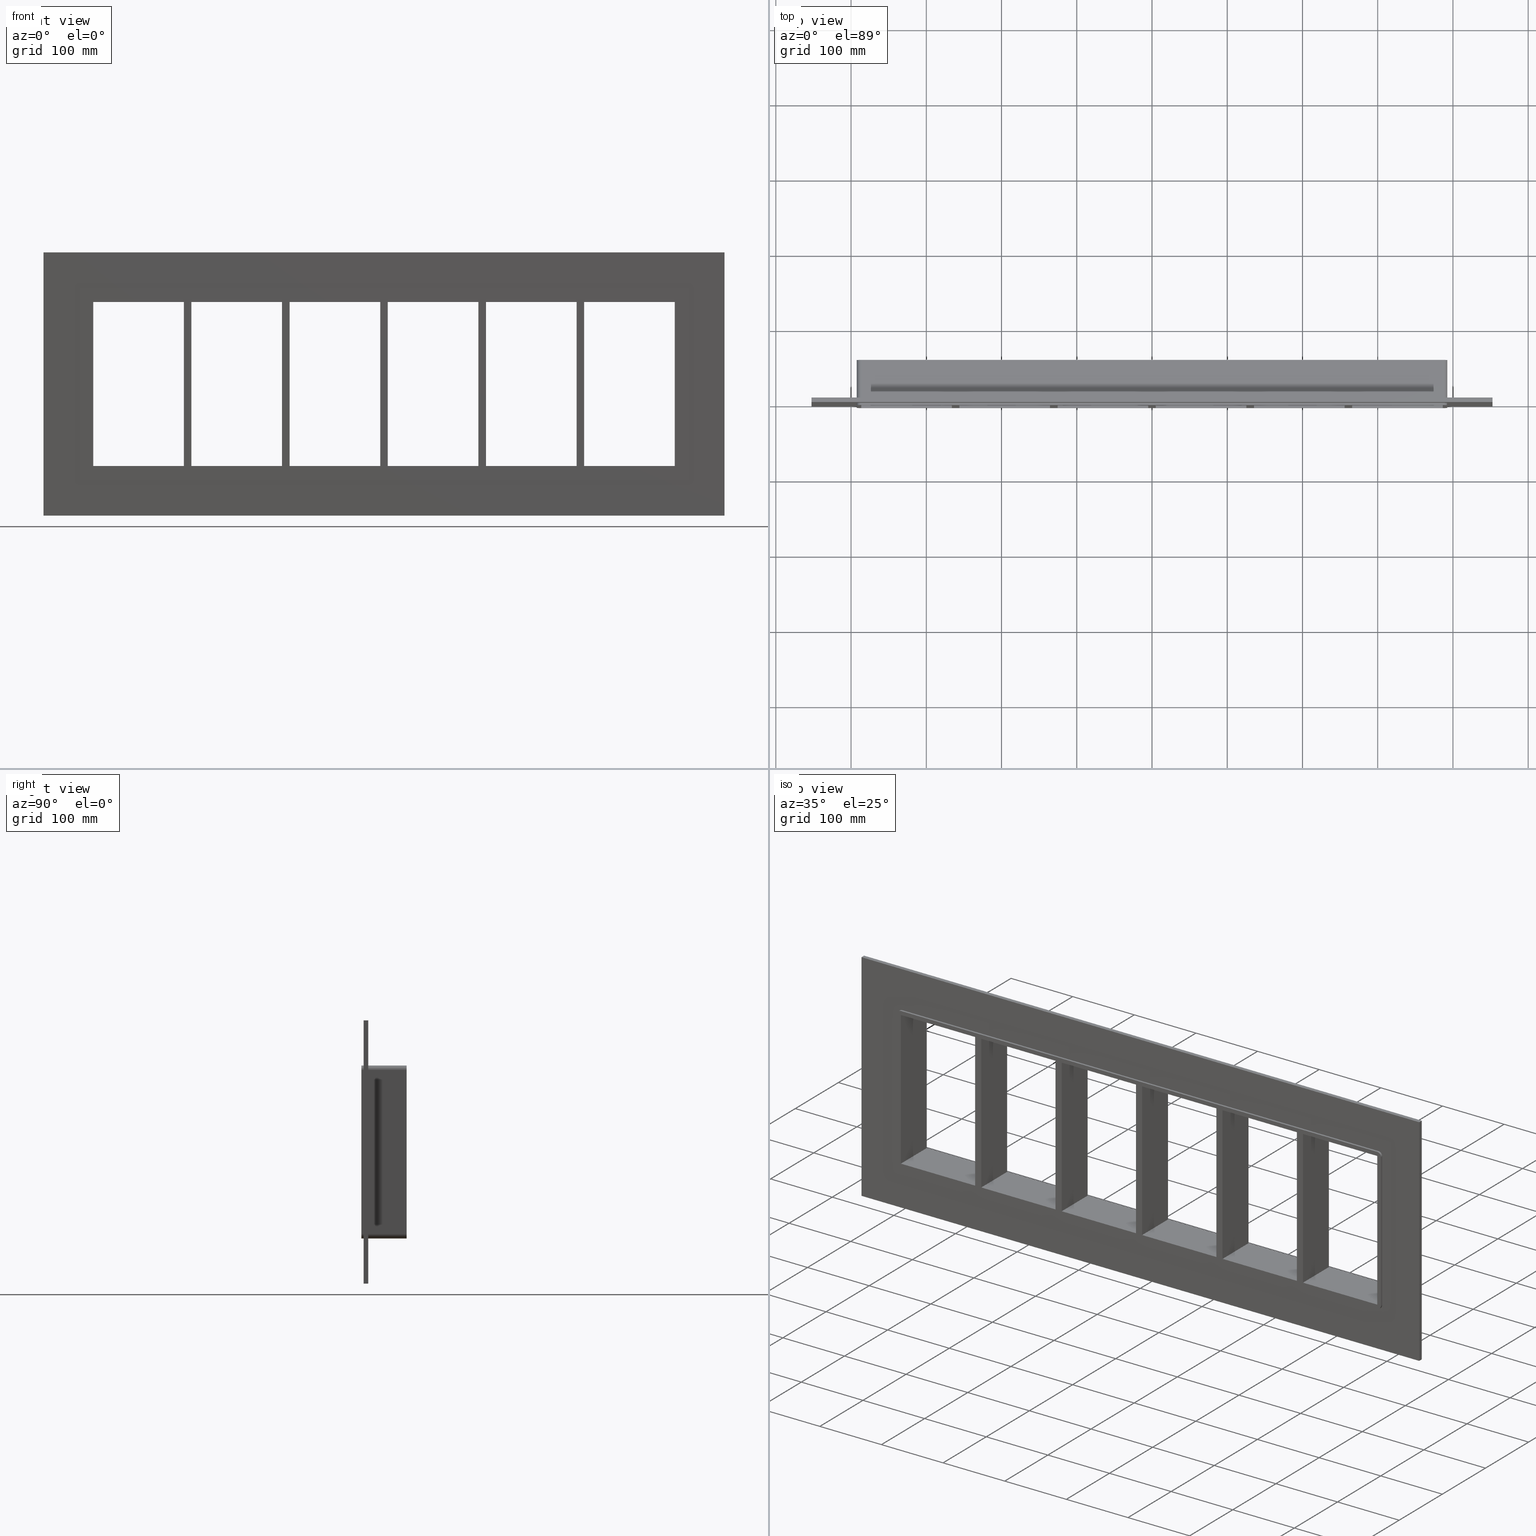
[diagram: canonical four-view strip — front | top / right | iso, engineering-drawing reading convention]
A machine part, canonical four-view strip (front | top / right | iso — engineering-drawing reading convention). The complete STEP part file that produces these views, byte-faithful:
ISO-10303-21;
HEADER;
/****************************************************************
 * Generated by software with PDElib inside                    *
 * PDElib Version v51a, created Wed 11/30/2011                  *
 * ITI Transcendata (http://www.transcendata.com/)              *
 ****************************************************************/
FILE_DESCRIPTION((''),'2;1');
FILE_NAME('C:\\RoxtecConfigurator\\CreatedFiles\\STEP\\G6X6.stp','2013-06-28T12:55:43',(''),(''),'Autodesk Inventor 2013','Autodesk Inventor 2013','');
FILE_SCHEMA(('AUTOMOTIVE_DESIGN { 1 0 10303 214 1 1 1 1 }'));
ENDSEC;
DATA;
#5=APPLICATION_CONTEXT('automotive design');
#6=APPLICATION_PROTOCOL_DEFINITION('International Standard','automotive_design',2001,#5);
#7=PRODUCT_CONTEXT('',#5,'mechanical');
#8=PRODUCT('roxtec S_SF_G','roxtec S_SF_G',$,(#7));
#9=PRODUCT_RELATED_PRODUCT_CATEGORY('part',$,(#8));
#10=PRODUCT_DEFINITION_FORMATION('',$,#8);
#11=PRODUCT_DEFINITION_CONTEXT('part definition',#5,'design');
#12=PRODUCT_DEFINITION('',$,#10,#11);
#18=(NAMED_UNIT(*)PLANE_ANGLE_UNIT()SI_UNIT($,.RADIAN.));
#19=DIMENSIONAL_EXPONENTS(0.0,0.0,0.0,0.0,0.0,0.0,0.0);
#20=PLANE_ANGLE_MEASURE_WITH_UNIT(PLANE_ANGLE_MEASURE(0.0174532925),#18);
#24=(CONVERSION_BASED_UNIT('DEGREE',#20)NAMED_UNIT(#19)PLANE_ANGLE_UNIT());
#28=(NAMED_UNIT(*)SI_UNIT($,.STERADIAN.)SOLID_ANGLE_UNIT());
#32=(LENGTH_UNIT()NAMED_UNIT(*)SI_UNIT(.MILLI.,.METRE.));
#34=UNCERTAINTY_MEASURE_WITH_UNIT(LENGTH_MEASURE(0.01),#32,'DISTANCE_ACCURACY_VALUE','');
#36=(GEOMETRIC_REPRESENTATION_CONTEXT(3)GLOBAL_UNCERTAINTY_ASSIGNED_CONTEXT((#34))GLOBAL_UNIT_ASSIGNED_CONTEXT((#24,#28,#32))REPRESENTATION_CONTEXT('None','None'));
#37=AXIS2_PLACEMENT_3D('',#38,#39,#40);
#38=CARTESIAN_POINT('',(0.0,0.0,0.0));
#39=DIRECTION('',(0.0,0.0,1.0));
#40=DIRECTION('',(1.0,0.0,0.0));
#41=SHAPE_REPRESENTATION('',(#37),#36);
#42=PRODUCT_DEFINITION_SHAPE('','',#12);
#43=SHAPE_DEFINITION_REPRESENTATION(#42,#41);
#49=(NAMED_UNIT(*)PLANE_ANGLE_UNIT()SI_UNIT($,.RADIAN.));
#50=DIMENSIONAL_EXPONENTS(0.0,0.0,0.0,0.0,0.0,0.0,0.0);
#51=PLANE_ANGLE_MEASURE_WITH_UNIT(PLANE_ANGLE_MEASURE(0.0174532925),#49);
#55=(CONVERSION_BASED_UNIT('DEGREE',#51)NAMED_UNIT(#50)PLANE_ANGLE_UNIT());
#59=(NAMED_UNIT(*)SI_UNIT($,.STERADIAN.)SOLID_ANGLE_UNIT());
#63=(LENGTH_UNIT()NAMED_UNIT(*)SI_UNIT(.MILLI.,.METRE.));
#65=UNCERTAINTY_MEASURE_WITH_UNIT(LENGTH_MEASURE(0.000001),#63,'DISTANCE_ACCURACY_VALUE','');
#67=(GEOMETRIC_REPRESENTATION_CONTEXT(3)GLOBAL_UNCERTAINTY_ASSIGNED_CONTEXT((#65))GLOBAL_UNIT_ASSIGNED_CONTEXT((#55,#59,#63))REPRESENTATION_CONTEXT('','3D'));
#68=CARTESIAN_POINT('',(255.99999999999864,-3.0,-109.0));
#69=DIRECTION('',(-1.0,0.0,0.0));
#70=DIRECTION('',(0.0,0.0,1.0));
#71=AXIS2_PLACEMENT_3D('',#68,#69,#70);
#72=PLANE('',#71);
#73=CARTESIAN_POINT('',(255.99999999999864,-3.0,-109.0));
#74=VERTEX_POINT('',#73);
#75=CARTESIAN_POINT('',(255.99999999999858,-3.0,109.00000000000004));
#76=VERTEX_POINT('',#75);
#77=CARTESIAN_POINT('',(255.99999999999864,-3.0,-109.0));
#78=DIRECTION('',(0.0,0.0,1.0));
#79=VECTOR('',#78,218.00000000000006);
#80=LINE('',#77,#79);
#81=EDGE_CURVE('',#74,#76,#80,.T.);
#82=ORIENTED_EDGE('',*,*,#81,.T.);
#83=CARTESIAN_POINT('',(255.99999999999858,57.0,109.00000000000004));
#84=VERTEX_POINT('',#83);
#85=CARTESIAN_POINT('',(255.99999999999858,57.000000000000007,109.00000000000003));
#86=DIRECTION('',(0.0,-1.0,0.0));
#87=VECTOR('',#86,60.000000000000007);
#88=LINE('',#85,#87);
#89=EDGE_CURVE('',#84,#76,#88,.T.);
#90=ORIENTED_EDGE('',*,*,#89,.F.);
#91=CARTESIAN_POINT('',(255.99999999999864,57.0,-109.0));
#92=VERTEX_POINT('',#91);
#93=CARTESIAN_POINT('',(255.99999999999864,57.0,-109.0));
#94=DIRECTION('',(0.0,0.0,1.0));
#95=VECTOR('',#94,218.00000000000006);
#96=LINE('',#93,#95);
#97=EDGE_CURVE('',#92,#84,#96,.T.);
#98=ORIENTED_EDGE('',*,*,#97,.F.);
#99=CARTESIAN_POINT('',(255.99999999999858,-3.0,-109.0));
#100=DIRECTION('',(0.0,1.0,0.0));
#101=VECTOR('',#100,60.000000000000007);
#102=LINE('',#99,#101);
#103=EDGE_CURVE('',#74,#92,#102,.T.);
#104=ORIENTED_EDGE('',*,*,#103,.F.);
#105=EDGE_LOOP('',(#82,#90,#98,#104));
#106=FACE_OUTER_BOUND('',#105,.T.);
#107=ADVANCED_FACE('',(#106),#72,.T.);
#108=CARTESIAN_POINT('',(265.99999999999642,-3.0,109.00000000000004));
#109=DIRECTION('',(1.0,0.0,0.0));
#110=DIRECTION('',(0.0,0.0,-1.0));
#111=AXIS2_PLACEMENT_3D('',#108,#109,#110);
#112=PLANE('',#111);
#113=CARTESIAN_POINT('',(265.99999999999642,-3.0,109.00000000000004));
#114=VERTEX_POINT('',#113);
#115=CARTESIAN_POINT('',(265.99999999999642,-3.0,-108.99999999998428));
#116=VERTEX_POINT('',#115);
#117=CARTESIAN_POINT('',(265.99999999999642,-3.0,109.00000000000004));
#118=DIRECTION('',(0.0,0.0,-1.0));
#119=VECTOR('',#118,217.99999999998434);
#120=LINE('',#117,#119);
#121=EDGE_CURVE('',#114,#116,#120,.T.);
#122=ORIENTED_EDGE('',*,*,#121,.T.);
#123=CARTESIAN_POINT('',(265.99999999999642,57.0,-108.9999999999843));
#124=VERTEX_POINT('',#123);
#125=CARTESIAN_POINT('',(265.99999999999648,57.000000000000007,-109.0));
#126=DIRECTION('',(0.0,-1.0,0.0));
#127=VECTOR('',#126,60.000000000000007);
#128=LINE('',#125,#127);
#129=EDGE_CURVE('',#124,#116,#128,.T.);
#130=ORIENTED_EDGE('',*,*,#129,.F.);
#131=CARTESIAN_POINT('',(265.99999999999642,57.0,109.00000000000004));
#132=VERTEX_POINT('',#131);
#133=CARTESIAN_POINT('',(265.99999999999642,57.0,109.00000000000004));
#134=DIRECTION('',(0.0,0.0,-1.0));
#135=VECTOR('',#134,217.99999999998434);
#136=LINE('',#133,#135);
#137=EDGE_CURVE('',#132,#124,#136,.T.);
#138=ORIENTED_EDGE('',*,*,#137,.F.);
#139=CARTESIAN_POINT('',(265.99999999999648,-3.0,109.00000000000003));
#140=DIRECTION('',(0.0,1.0,0.0));
#141=VECTOR('',#140,60.000000000000007);
#142=LINE('',#139,#141);
#143=EDGE_CURVE('',#114,#132,#142,.T.);
#144=ORIENTED_EDGE('',*,*,#143,.F.);
#145=EDGE_LOOP('',(#122,#130,#138,#144));
#146=FACE_OUTER_BOUND('',#145,.T.);
#147=ADVANCED_FACE('',(#146),#112,.T.);
#148=CARTESIAN_POINT('',(125.49999999999862,-3.0,-109.0));
#149=DIRECTION('',(-1.0,0.0,0.0));
#150=DIRECTION('',(0.0,0.0,1.0));
#151=AXIS2_PLACEMENT_3D('',#148,#149,#150);
#152=PLANE('',#151);
#153=CARTESIAN_POINT('',(125.49999999999862,-3.0,-109.0));
#154=VERTEX_POINT('',#153);
#155=CARTESIAN_POINT('',(125.49999999999858,-3.0,109.00000000000004));
#156=VERTEX_POINT('',#155);
#157=CARTESIAN_POINT('',(125.49999999999862,-3.0,-109.0));
#158=DIRECTION('',(0.0,0.0,1.0));
#159=VECTOR('',#158,218.00000000000006);
#160=LINE('',#157,#159);
#161=EDGE_CURVE('',#154,#156,#160,.T.);
#162=ORIENTED_EDGE('',*,*,#161,.T.);
#163=CARTESIAN_POINT('',(125.49999999999858,57.0,109.00000000000004));
#164=VERTEX_POINT('',#163);
#165=CARTESIAN_POINT('',(125.49999999999861,57.000000000000007,109.00000000000003));
#166=DIRECTION('',(0.0,-1.0,0.0));
#167=VECTOR('',#166,60.000000000000007);
#168=LINE('',#165,#167);
#169=EDGE_CURVE('',#164,#156,#168,.T.);
#170=ORIENTED_EDGE('',*,*,#169,.F.);
#171=CARTESIAN_POINT('',(125.49999999999862,57.0,-109.0));
#172=VERTEX_POINT('',#171);
#173=CARTESIAN_POINT('',(125.49999999999862,57.0,-109.0));
#174=DIRECTION('',(0.0,0.0,1.0));
#175=VECTOR('',#174,218.00000000000006);
#176=LINE('',#173,#175);
#177=EDGE_CURVE('',#172,#164,#176,.T.);
#178=ORIENTED_EDGE('',*,*,#177,.F.);
#179=CARTESIAN_POINT('',(125.49999999999862,-3.0,-109.0));
#180=DIRECTION('',(0.0,1.0,0.0));
#181=VECTOR('',#180,60.000000000000007);
#182=LINE('',#179,#181);
#183=EDGE_CURVE('',#154,#172,#182,.T.);
#184=ORIENTED_EDGE('',*,*,#183,.F.);
#185=EDGE_LOOP('',(#162,#170,#178,#184));
#186=FACE_OUTER_BOUND('',#185,.T.);
#187=ADVANCED_FACE('',(#186),#152,.T.);
#188=CARTESIAN_POINT('',(135.49999999999642,-3.0,109.00000000000004));
#189=DIRECTION('',(1.0,0.0,0.0));
#190=DIRECTION('',(0.0,0.0,-1.0));
#191=AXIS2_PLACEMENT_3D('',#188,#189,#190);
#192=PLANE('',#191);
#193=CARTESIAN_POINT('',(135.49999999999642,-3.0,109.00000000000004));
#194=VERTEX_POINT('',#193);
#195=CARTESIAN_POINT('',(135.49999999999642,-3.0,-108.99999999998428));
#196=VERTEX_POINT('',#195);
#197=CARTESIAN_POINT('',(135.49999999999642,-3.0,109.00000000000004));
#198=DIRECTION('',(0.0,0.0,-1.0));
#199=VECTOR('',#198,217.99999999998434);
#200=LINE('',#197,#199);
#201=EDGE_CURVE('',#194,#196,#200,.T.);
#202=ORIENTED_EDGE('',*,*,#201,.T.);
#203=CARTESIAN_POINT('',(135.49999999999642,57.0,-108.9999999999843));
#204=VERTEX_POINT('',#203);
#205=CARTESIAN_POINT('',(135.49999999999642,57.000000000000007,-109.0));
#206=DIRECTION('',(0.0,-1.0,0.0));
#207=VECTOR('',#206,60.000000000000007);
#208=LINE('',#205,#207);
#209=EDGE_CURVE('',#204,#196,#208,.T.);
#210=ORIENTED_EDGE('',*,*,#209,.F.);
#211=CARTESIAN_POINT('',(135.49999999999642,57.0,109.00000000000004));
#212=VERTEX_POINT('',#211);
#213=CARTESIAN_POINT('',(135.49999999999642,57.0,109.00000000000004));
#214=DIRECTION('',(0.0,0.0,-1.0));
#215=VECTOR('',#214,217.99999999998434);
#216=LINE('',#213,#215);
#217=EDGE_CURVE('',#212,#204,#216,.T.);
#218=ORIENTED_EDGE('',*,*,#217,.F.);
#219=CARTESIAN_POINT('',(135.49999999999642,-3.0,109.00000000000003));
#220=DIRECTION('',(0.0,1.0,0.0));
#221=VECTOR('',#220,60.000000000000007);
#222=LINE('',#219,#221);
#223=EDGE_CURVE('',#194,#212,#222,.T.);
#224=ORIENTED_EDGE('',*,*,#223,.F.);
#225=EDGE_LOOP('',(#202,#210,#218,#224));
#226=FACE_OUTER_BOUND('',#225,.T.);
#227=ADVANCED_FACE('',(#226),#192,.T.);
#228=CARTESIAN_POINT('',(-5.000000000001421,-3.0,-109.0));
#229=DIRECTION('',(-1.0,0.0,0.0));
#230=DIRECTION('',(0.0,0.0,1.0));
#231=AXIS2_PLACEMENT_3D('',#228,#229,#230);
#232=PLANE('',#231);
#233=CARTESIAN_POINT('',(-5.000000000001421,-3.0,-109.0));
#234=VERTEX_POINT('',#233);
#235=CARTESIAN_POINT('',(-5.000000000001457,-3.0,109.00000000000004));
#236=VERTEX_POINT('',#235);
#237=CARTESIAN_POINT('',(-5.000000000001421,-3.0,-109.0));
#238=DIRECTION('',(0.0,0.0,1.0));
#239=VECTOR('',#238,218.00000000000006);
#240=LINE('',#237,#239);
#241=EDGE_CURVE('',#234,#236,#240,.T.);
#242=ORIENTED_EDGE('',*,*,#241,.T.);
#243=CARTESIAN_POINT('',(-5.000000000001457,57.0,109.00000000000004));
#244=VERTEX_POINT('',#243);
#245=CARTESIAN_POINT('',(-5.000000000001474,57.000000000000007,109.00000000000003));
#246=DIRECTION('',(0.0,-1.0,0.0));
#247=VECTOR('',#246,60.000000000000007);
#248=LINE('',#245,#247);
#249=EDGE_CURVE('',#244,#236,#248,.T.);
#250=ORIENTED_EDGE('',*,*,#249,.F.);
#251=CARTESIAN_POINT('',(-5.000000000001421,57.0,-109.0));
#252=VERTEX_POINT('',#251);
#253=CARTESIAN_POINT('',(-5.000000000001421,57.0,-109.0));
#254=DIRECTION('',(0.0,0.0,1.0));
#255=VECTOR('',#254,218.00000000000006);
#256=LINE('',#253,#255);
#257=EDGE_CURVE('',#252,#244,#256,.T.);
#258=ORIENTED_EDGE('',*,*,#257,.F.);
#259=CARTESIAN_POINT('',(-5.000000000001421,-3.0,-109.0));
#260=DIRECTION('',(0.0,1.0,0.0));
#261=VECTOR('',#260,60.000000000000007);
#262=LINE('',#259,#261);
#263=EDGE_CURVE('',#234,#252,#262,.T.);
#264=ORIENTED_EDGE('',*,*,#263,.F.);
#265=EDGE_LOOP('',(#242,#250,#258,#264));
#266=FACE_OUTER_BOUND('',#265,.T.);
#267=ADVANCED_FACE('',(#266),#232,.T.);
#268=CARTESIAN_POINT('',(4.999999999996376,-3.0,109.00000000000004));
#269=DIRECTION('',(1.0,0.0,0.0));
#270=DIRECTION('',(0.0,0.0,-1.0));
#271=AXIS2_PLACEMENT_3D('',#268,#269,#270);
#272=PLANE('',#271);
#273=CARTESIAN_POINT('',(4.999999999996376,-3.0,109.00000000000004));
#274=VERTEX_POINT('',#273);
#275=CARTESIAN_POINT('',(4.999999999996376,-3.0,-108.99999999998428));
#276=VERTEX_POINT('',#275);
#277=CARTESIAN_POINT('',(4.999999999996376,-3.0,109.00000000000004));
#278=DIRECTION('',(0.0,0.0,-1.0));
#279=VECTOR('',#278,217.99999999998434);
#280=LINE('',#277,#279);
#281=EDGE_CURVE('',#274,#276,#280,.T.);
#282=ORIENTED_EDGE('',*,*,#281,.T.);
#283=CARTESIAN_POINT('',(4.999999999996376,57.0,-108.9999999999843));
#284=VERTEX_POINT('',#283);
#285=CARTESIAN_POINT('',(4.999999999996376,57.000000000000007,-109.0));
#286=DIRECTION('',(0.0,-1.0,0.0));
#287=VECTOR('',#286,60.000000000000007);
#288=LINE('',#285,#287);
#289=EDGE_CURVE('',#284,#276,#288,.T.);
#290=ORIENTED_EDGE('',*,*,#289,.F.);
#291=CARTESIAN_POINT('',(4.999999999996376,57.0,109.00000000000004));
#292=VERTEX_POINT('',#291);
#293=CARTESIAN_POINT('',(4.999999999996376,57.0,109.00000000000004));
#294=DIRECTION('',(0.0,0.0,-1.0));
#295=VECTOR('',#294,217.99999999998434);
#296=LINE('',#293,#295);
#297=EDGE_CURVE('',#292,#284,#296,.T.);
#298=ORIENTED_EDGE('',*,*,#297,.F.);
#299=CARTESIAN_POINT('',(4.999999999996376,-3.0,109.00000000000003));
#300=DIRECTION('',(0.0,1.0,0.0));
#301=VECTOR('',#300,60.000000000000007);
#302=LINE('',#299,#301);
#303=EDGE_CURVE('',#274,#292,#302,.T.);
#304=ORIENTED_EDGE('',*,*,#303,.F.);
#305=EDGE_LOOP('',(#282,#290,#298,#304));
#306=FACE_OUTER_BOUND('',#305,.T.);
#307=ADVANCED_FACE('',(#306),#272,.T.);
#308=CARTESIAN_POINT('',(-135.50000000000142,-3.0,-109.0));
#309=DIRECTION('',(-1.0,0.0,0.0));
#310=DIRECTION('',(0.0,0.0,1.0));
#311=AXIS2_PLACEMENT_3D('',#308,#309,#310);
#312=PLANE('',#311);
#313=CARTESIAN_POINT('',(-135.50000000000142,-3.0,-109.0));
#314=VERTEX_POINT('',#313);
#315=CARTESIAN_POINT('',(-135.50000000000148,-3.0,109.00000000000004));
#316=VERTEX_POINT('',#315);
#317=CARTESIAN_POINT('',(-135.50000000000142,-3.0,-109.0));
#318=DIRECTION('',(0.0,0.0,1.0));
#319=VECTOR('',#318,218.00000000000006);
#320=LINE('',#317,#319);
#321=EDGE_CURVE('',#314,#316,#320,.T.);
#322=ORIENTED_EDGE('',*,*,#321,.T.);
#323=CARTESIAN_POINT('',(-135.50000000000148,57.0,109.00000000000004));
#324=VERTEX_POINT('',#323);
#325=CARTESIAN_POINT('',(-135.50000000000148,57.000000000000007,109.00000000000003));
#326=DIRECTION('',(0.0,-1.0,0.0));
#327=VECTOR('',#326,60.000000000000007);
#328=LINE('',#325,#327);
#329=EDGE_CURVE('',#324,#316,#328,.T.);
#330=ORIENTED_EDGE('',*,*,#329,.F.);
#331=CARTESIAN_POINT('',(-135.50000000000142,57.0,-109.0));
#332=VERTEX_POINT('',#331);
#333=CARTESIAN_POINT('',(-135.50000000000142,57.0,-109.0));
#334=DIRECTION('',(0.0,0.0,1.0));
#335=VECTOR('',#334,218.00000000000006);
#336=LINE('',#333,#335);
#337=EDGE_CURVE('',#332,#324,#336,.T.);
#338=ORIENTED_EDGE('',*,*,#337,.F.);
#339=CARTESIAN_POINT('',(-135.50000000000145,-3.0,-109.0));
#340=DIRECTION('',(0.0,1.0,0.0));
#341=VECTOR('',#340,60.000000000000007);
#342=LINE('',#339,#341);
#343=EDGE_CURVE('',#314,#332,#342,.T.);
#344=ORIENTED_EDGE('',*,*,#343,.F.);
#345=EDGE_LOOP('',(#322,#330,#338,#344));
#346=FACE_OUTER_BOUND('',#345,.T.);
#347=ADVANCED_FACE('',(#346),#312,.T.);
#348=CARTESIAN_POINT('',(-125.50000000000364,-3.0,109.00000000000004));
#349=DIRECTION('',(1.0,0.0,0.0));
#350=DIRECTION('',(0.0,0.0,-1.0));
#351=AXIS2_PLACEMENT_3D('',#348,#349,#350);
#352=PLANE('',#351);
#353=CARTESIAN_POINT('',(-125.50000000000364,-3.0,109.00000000000004));
#354=VERTEX_POINT('',#353);
#355=CARTESIAN_POINT('',(-125.50000000000364,-3.0,-108.99999999998428));
#356=VERTEX_POINT('',#355);
#357=CARTESIAN_POINT('',(-125.50000000000364,-3.0,109.00000000000004));
#358=DIRECTION('',(0.0,0.0,-1.0));
#359=VECTOR('',#358,217.99999999998434);
#360=LINE('',#357,#359);
#361=EDGE_CURVE('',#354,#356,#360,.T.);
#362=ORIENTED_EDGE('',*,*,#361,.T.);
#363=CARTESIAN_POINT('',(-125.50000000000364,57.0,-108.9999999999843));
#364=VERTEX_POINT('',#363);
#365=CARTESIAN_POINT('',(-125.50000000000361,57.000000000000007,-109.0));
#366=DIRECTION('',(0.0,-1.0,0.0));
#367=VECTOR('',#366,60.000000000000007);
#368=LINE('',#365,#367);
#369=EDGE_CURVE('',#364,#356,#368,.T.);
#370=ORIENTED_EDGE('',*,*,#369,.F.);
#371=CARTESIAN_POINT('',(-125.50000000000364,57.0,109.00000000000004));
#372=VERTEX_POINT('',#371);
#373=CARTESIAN_POINT('',(-125.50000000000364,57.0,109.00000000000004));
#374=DIRECTION('',(0.0,0.0,-1.0));
#375=VECTOR('',#374,217.99999999998434);
#376=LINE('',#373,#375);
#377=EDGE_CURVE('',#372,#364,#376,.T.);
#378=ORIENTED_EDGE('',*,*,#377,.F.);
#379=CARTESIAN_POINT('',(-125.50000000000361,-3.0,109.00000000000003));
#380=DIRECTION('',(0.0,1.0,0.0));
#381=VECTOR('',#380,60.000000000000007);
#382=LINE('',#379,#381);
#383=EDGE_CURVE('',#354,#372,#382,.T.);
#384=ORIENTED_EDGE('',*,*,#383,.F.);
#385=EDGE_LOOP('',(#362,#370,#378,#384));
#386=FACE_OUTER_BOUND('',#385,.T.);
#387=ADVANCED_FACE('',(#386),#352,.T.);
#388=CARTESIAN_POINT('',(386.50000000000011,0.0,-109.0));
#389=DIRECTION('',(0.0,0.0,-1.0));
#390=DIRECTION('',(-1.0,0.0,0.0));
#391=AXIS2_PLACEMENT_3D('',#388,#389,#390);
#392=PLANE('',#391);
#393=ORIENTED_EDGE('',*,*,#343,.T.);
#394=CARTESIAN_POINT('',(-256.00000000000364,57.0,-108.9999999999843));
#395=VERTEX_POINT('',#394);
#396=CARTESIAN_POINT('',(-256.00000000000364,57.0,-109.0));
#397=DIRECTION('',(1.0,0.0,0.0));
#398=VECTOR('',#397,120.50000000000225);
#399=LINE('',#396,#398);
#400=EDGE_CURVE('',#395,#332,#399,.T.);
#401=ORIENTED_EDGE('',*,*,#400,.F.);
#402=CARTESIAN_POINT('',(-256.00000000000364,-3.0,-108.99999999998428));
#403=VERTEX_POINT('',#402);
#404=CARTESIAN_POINT('',(-256.00000000000358,57.000000000000007,-109.0));
#405=DIRECTION('',(0.0,-1.0,0.0));
#406=VECTOR('',#405,60.000000000000007);
#407=LINE('',#404,#406);
#408=EDGE_CURVE('',#395,#403,#407,.T.);
#409=ORIENTED_EDGE('',*,*,#408,.T.);
#410=CARTESIAN_POINT('',(-135.50000000000139,-3.0,-109.0));
#411=DIRECTION('',(-1.0,0.0,0.0));
#412=VECTOR('',#411,120.50000000000225);
#413=LINE('',#410,#412);
#414=EDGE_CURVE('',#314,#403,#413,.T.);
#415=ORIENTED_EDGE('',*,*,#414,.F.);
#416=EDGE_LOOP('',(#393,#401,#409,#415));
#417=FACE_OUTER_BOUND('',#416,.T.);
#418=ADVANCED_FACE('',(#417),#392,.F.);
#419=CARTESIAN_POINT('',(386.50000000000011,0.0,-109.0));
#420=DIRECTION('',(0.0,0.0,-1.0));
#421=DIRECTION('',(-1.0,0.0,0.0));
#422=AXIS2_PLACEMENT_3D('',#419,#420,#421);
#423=PLANE('',#422);
#424=ORIENTED_EDGE('',*,*,#263,.T.);
#425=CARTESIAN_POINT('',(-125.50000000000361,57.0,-109.0));
#426=DIRECTION('',(1.0,0.0,0.0));
#427=VECTOR('',#426,120.50000000000219);
#428=LINE('',#425,#427);
#429=EDGE_CURVE('',#364,#252,#428,.T.);
#430=ORIENTED_EDGE('',*,*,#429,.F.);
#431=ORIENTED_EDGE('',*,*,#369,.T.);
#432=CARTESIAN_POINT('',(-5.000000000001421,-3.0,-109.0));
#433=DIRECTION('',(-1.0,0.0,0.0));
#434=VECTOR('',#433,120.50000000000219);
#435=LINE('',#432,#434);
#436=EDGE_CURVE('',#234,#356,#435,.T.);
#437=ORIENTED_EDGE('',*,*,#436,.F.);
#438=EDGE_LOOP('',(#424,#430,#431,#437));
#439=FACE_OUTER_BOUND('',#438,.T.);
#440=ADVANCED_FACE('',(#439),#423,.F.);
#441=CARTESIAN_POINT('',(386.50000000000011,0.0,-109.0));
#442=DIRECTION('',(0.0,0.0,-1.0));
#443=DIRECTION('',(-1.0,0.0,0.0));
#444=AXIS2_PLACEMENT_3D('',#441,#442,#443);
#445=PLANE('',#444);
#446=ORIENTED_EDGE('',*,*,#183,.T.);
#447=CARTESIAN_POINT('',(4.99999999999639,57.0,-109.0));
#448=DIRECTION('',(1.0,0.0,0.0));
#449=VECTOR('',#448,120.50000000000223);
#450=LINE('',#447,#449);
#451=EDGE_CURVE('',#284,#172,#450,.T.);
#452=ORIENTED_EDGE('',*,*,#451,.F.);
#453=ORIENTED_EDGE('',*,*,#289,.T.);
#454=CARTESIAN_POINT('',(125.49999999999862,-3.0,-109.0));
#455=DIRECTION('',(-1.0,0.0,0.0));
#456=VECTOR('',#455,120.50000000000223);
#457=LINE('',#454,#456);
#458=EDGE_CURVE('',#154,#276,#457,.T.);
#459=ORIENTED_EDGE('',*,*,#458,.F.);
#460=EDGE_LOOP('',(#446,#452,#453,#459));
#461=FACE_OUTER_BOUND('',#460,.T.);
#462=ADVANCED_FACE('',(#461),#445,.F.);
#463=CARTESIAN_POINT('',(386.50000000000011,0.0,-109.0));
#464=DIRECTION('',(0.0,0.0,-1.0));
#465=DIRECTION('',(-1.0,0.0,0.0));
#466=AXIS2_PLACEMENT_3D('',#463,#464,#465);
#467=PLANE('',#466);
#468=ORIENTED_EDGE('',*,*,#103,.T.);
#469=CARTESIAN_POINT('',(135.49999999999642,57.0,-109.0));
#470=DIRECTION('',(1.0,0.0,0.0));
#471=VECTOR('',#470,120.50000000000222);
#472=LINE('',#469,#471);
#473=EDGE_CURVE('',#204,#92,#472,.T.);
#474=ORIENTED_EDGE('',*,*,#473,.F.);
#475=ORIENTED_EDGE('',*,*,#209,.T.);
#476=CARTESIAN_POINT('',(255.99999999999864,-3.0,-109.0));
#477=DIRECTION('',(-1.0,0.0,0.0));
#478=VECTOR('',#477,120.50000000000222);
#479=LINE('',#476,#478);
#480=EDGE_CURVE('',#74,#196,#479,.T.);
#481=ORIENTED_EDGE('',*,*,#480,.F.);
#482=EDGE_LOOP('',(#468,#474,#475,#481));
#483=FACE_OUTER_BOUND('',#482,.T.);
#484=ADVANCED_FACE('',(#483),#467,.F.);
#485=CARTESIAN_POINT('',(386.50000000000011,0.0,-109.0));
#486=DIRECTION('',(0.0,0.0,-1.0));
#487=DIRECTION('',(-1.0,0.0,0.0));
#488=AXIS2_PLACEMENT_3D('',#485,#486,#487);
#489=PLANE('',#488);
#490=ORIENTED_EDGE('',*,*,#129,.T.);
#491=CARTESIAN_POINT('',(386.50000000000011,-3.0,-109.0));
#492=VERTEX_POINT('',#491);
#493=CARTESIAN_POINT('',(386.50000000000011,-3.0,-109.0));
#494=DIRECTION('',(-1.0,0.0,0.0));
#495=VECTOR('',#494,120.50000000000369);
#496=LINE('',#493,#495);
#497=EDGE_CURVE('',#492,#116,#496,.T.);
#498=ORIENTED_EDGE('',*,*,#497,.F.);
#499=CARTESIAN_POINT('',(386.50000000000011,57.0,-109.0));
#500=VERTEX_POINT('',#499);
#501=CARTESIAN_POINT('',(386.50000000000011,56.999999999999993,-109.0));
#502=DIRECTION('',(0.0,-1.0,0.0));
#503=VECTOR('',#502,59.999999999999993);
#504=LINE('',#501,#503);
#505=EDGE_CURVE('',#500,#492,#504,.T.);
#506=ORIENTED_EDGE('',*,*,#505,.F.);
#507=CARTESIAN_POINT('',(265.99999999999642,57.0,-109.0));
#508=DIRECTION('',(1.0,0.0,0.0));
#509=VECTOR('',#508,120.50000000000369);
#510=LINE('',#507,#509);
#511=EDGE_CURVE('',#124,#500,#510,.T.);
#512=ORIENTED_EDGE('',*,*,#511,.F.);
#513=EDGE_LOOP('',(#490,#498,#506,#512));
#514=FACE_OUTER_BOUND('',#513,.T.);
#515=ADVANCED_FACE('',(#514),#489,.F.);
#516=CARTESIAN_POINT('',(-386.50000000000011,0.0,109.00000000000003));
#517=DIRECTION('',(0.0,0.0,1.0));
#518=DIRECTION('',(1.0,0.0,0.0));
#519=AXIS2_PLACEMENT_3D('',#516,#517,#518);
#520=PLANE('',#519);
#521=ORIENTED_EDGE('',*,*,#329,.T.);
#522=CARTESIAN_POINT('',(-256.00000000000364,-3.0,109.00000000000004));
#523=VERTEX_POINT('',#522);
#524=CARTESIAN_POINT('',(-256.00000000000364,-3.0,109.00000000000003));
#525=DIRECTION('',(1.0,0.0,0.0));
#526=VECTOR('',#525,120.50000000000216);
#527=LINE('',#524,#526);
#528=EDGE_CURVE('',#523,#316,#527,.T.);
#529=ORIENTED_EDGE('',*,*,#528,.F.);
#530=CARTESIAN_POINT('',(-256.00000000000364,57.0,109.00000000000004));
#531=VERTEX_POINT('',#530);
#532=CARTESIAN_POINT('',(-256.00000000000358,-3.0,109.00000000000003));
#533=DIRECTION('',(0.0,1.0,0.0));
#534=VECTOR('',#533,60.000000000000007);
#535=LINE('',#532,#534);
#536=EDGE_CURVE('',#523,#531,#535,.T.);
#537=ORIENTED_EDGE('',*,*,#536,.T.);
#538=CARTESIAN_POINT('',(-135.50000000000148,57.0,109.00000000000003));
#539=DIRECTION('',(-1.0,0.0,0.0));
#540=VECTOR('',#539,120.50000000000216);
#541=LINE('',#538,#540);
#542=EDGE_CURVE('',#324,#531,#541,.T.);
#543=ORIENTED_EDGE('',*,*,#542,.F.);
#544=EDGE_LOOP('',(#521,#529,#537,#543));
#545=FACE_OUTER_BOUND('',#544,.T.);
#546=ADVANCED_FACE('',(#545),#520,.F.);
#547=CARTESIAN_POINT('',(-386.50000000000011,0.0,109.00000000000003));
#548=DIRECTION('',(0.0,0.0,1.0));
#549=DIRECTION('',(1.0,0.0,0.0));
#550=AXIS2_PLACEMENT_3D('',#547,#548,#549);
#551=PLANE('',#550);
#552=ORIENTED_EDGE('',*,*,#249,.T.);
#553=CARTESIAN_POINT('',(-125.50000000000364,-3.0,109.00000000000003));
#554=DIRECTION('',(1.0,0.0,0.0));
#555=VECTOR('',#554,120.50000000000216);
#556=LINE('',#553,#555);
#557=EDGE_CURVE('',#354,#236,#556,.T.);
#558=ORIENTED_EDGE('',*,*,#557,.F.);
#559=ORIENTED_EDGE('',*,*,#383,.T.);
#560=CARTESIAN_POINT('',(-5.000000000001478,57.0,109.00000000000003));
#561=DIRECTION('',(-1.0,0.0,0.0));
#562=VECTOR('',#561,120.50000000000216);
#563=LINE('',#560,#562);
#564=EDGE_CURVE('',#244,#372,#563,.T.);
#565=ORIENTED_EDGE('',*,*,#564,.F.);
#566=EDGE_LOOP('',(#552,#558,#559,#565));
#567=FACE_OUTER_BOUND('',#566,.T.);
#568=ADVANCED_FACE('',(#567),#551,.F.);
#569=CARTESIAN_POINT('',(-386.50000000000011,0.0,109.00000000000003));
#570=DIRECTION('',(0.0,0.0,1.0));
#571=DIRECTION('',(1.0,0.0,0.0));
#572=AXIS2_PLACEMENT_3D('',#569,#570,#571);
#573=PLANE('',#572);
#574=ORIENTED_EDGE('',*,*,#169,.T.);
#575=CARTESIAN_POINT('',(4.999999999996362,-3.0,109.00000000000003));
#576=DIRECTION('',(1.0,0.0,0.0));
#577=VECTOR('',#576,120.50000000000222);
#578=LINE('',#575,#577);
#579=EDGE_CURVE('',#274,#156,#578,.T.);
#580=ORIENTED_EDGE('',*,*,#579,.F.);
#581=ORIENTED_EDGE('',*,*,#303,.T.);
#582=CARTESIAN_POINT('',(125.49999999999858,57.0,109.00000000000003));
#583=DIRECTION('',(-1.0,0.0,0.0));
#584=VECTOR('',#583,120.50000000000222);
#585=LINE('',#582,#584);
#586=EDGE_CURVE('',#164,#292,#585,.T.);
#587=ORIENTED_EDGE('',*,*,#586,.F.);
#588=EDGE_LOOP('',(#574,#580,#581,#587));
#589=FACE_OUTER_BOUND('',#588,.T.);
#590=ADVANCED_FACE('',(#589),#573,.F.);
#591=CARTESIAN_POINT('',(-386.50000000000011,0.0,109.00000000000003));
#592=DIRECTION('',(0.0,0.0,1.0));
#593=DIRECTION('',(1.0,0.0,0.0));
#594=AXIS2_PLACEMENT_3D('',#591,#592,#593);
#595=PLANE('',#594);
#596=ORIENTED_EDGE('',*,*,#143,.T.);
#597=CARTESIAN_POINT('',(386.50000000000011,57.0,109.00000000000004));
#598=VERTEX_POINT('',#597);
#599=CARTESIAN_POINT('',(386.50000000000011,57.0,109.00000000000003));
#600=DIRECTION('',(-1.0,0.0,0.0));
#601=VECTOR('',#600,120.50000000000364);
#602=LINE('',#599,#601);
#603=EDGE_CURVE('',#598,#132,#602,.T.);
#604=ORIENTED_EDGE('',*,*,#603,.F.);
#605=CARTESIAN_POINT('',(386.50000000000011,-3.0,109.00000000000004));
#606=VERTEX_POINT('',#605);
#607=CARTESIAN_POINT('',(386.50000000000011,-3.0,109.00000000000003));
#608=DIRECTION('',(0.0,1.0,0.0));
#609=VECTOR('',#608,60.0);
#610=LINE('',#607,#609);
#611=EDGE_CURVE('',#606,#598,#610,.T.);
#612=ORIENTED_EDGE('',*,*,#611,.F.);
#613=CARTESIAN_POINT('',(265.99999999999648,-3.0,109.00000000000003));
#614=DIRECTION('',(1.0,0.0,0.0));
#615=VECTOR('',#614,120.50000000000364);
#616=LINE('',#613,#615);
#617=EDGE_CURVE('',#114,#606,#616,.T.);
#618=ORIENTED_EDGE('',*,*,#617,.F.);
#619=EDGE_LOOP('',(#596,#604,#612,#618));
#620=FACE_OUTER_BOUND('',#619,.T.);
#621=ADVANCED_FACE('',(#620),#595,.F.);
#622=CARTESIAN_POINT('',(-386.50000000000011,0.0,109.00000000000003));
#623=DIRECTION('',(0.0,0.0,1.0));
#624=DIRECTION('',(1.0,0.0,0.0));
#625=AXIS2_PLACEMENT_3D('',#622,#623,#624);
#626=PLANE('',#625);
#627=ORIENTED_EDGE('',*,*,#89,.T.);
#628=CARTESIAN_POINT('',(135.49999999999642,-3.0,109.00000000000003));
#629=DIRECTION('',(1.0,0.0,0.0));
#630=VECTOR('',#629,120.50000000000216);
#631=LINE('',#628,#630);
#632=EDGE_CURVE('',#194,#76,#631,.T.);
#633=ORIENTED_EDGE('',*,*,#632,.F.);
#634=ORIENTED_EDGE('',*,*,#223,.T.);
#635=CARTESIAN_POINT('',(255.99999999999858,57.0,109.00000000000003));
#636=DIRECTION('',(-1.0,0.0,0.0));
#637=VECTOR('',#636,120.50000000000216);
#638=LINE('',#635,#637);
#639=EDGE_CURVE('',#84,#212,#638,.T.);
#640=ORIENTED_EDGE('',*,*,#639,.F.);
#641=EDGE_LOOP('',(#627,#633,#634,#640));
#642=FACE_OUTER_BOUND('',#641,.T.);
#643=ADVANCED_FACE('',(#642),#626,.F.);
#644=CARTESIAN_POINT('',(-266.00000000000142,-3.0,-109.0));
#645=DIRECTION('',(-1.0,0.0,0.0));
#646=DIRECTION('',(0.0,0.0,1.0));
#647=AXIS2_PLACEMENT_3D('',#644,#645,#646);
#648=PLANE('',#647);
#649=CARTESIAN_POINT('',(-266.00000000000142,-3.0,-109.0));
#650=VERTEX_POINT('',#649);
#651=CARTESIAN_POINT('',(-266.00000000000148,-3.0,109.00000000000004));
#652=VERTEX_POINT('',#651);
#653=CARTESIAN_POINT('',(-266.00000000000142,-3.0,-109.0));
#654=DIRECTION('',(0.0,0.0,1.0));
#655=VECTOR('',#654,218.00000000000006);
#656=LINE('',#653,#655);
#657=EDGE_CURVE('',#650,#652,#656,.T.);
#658=ORIENTED_EDGE('',*,*,#657,.T.);
#659=CARTESIAN_POINT('',(-266.00000000000148,57.0,109.00000000000004));
#660=VERTEX_POINT('',#659);
#661=CARTESIAN_POINT('',(-266.00000000000142,57.000000000000007,109.00000000000003));
#662=DIRECTION('',(0.0,-1.0,0.0));
#663=VECTOR('',#662,60.000000000000007);
#664=LINE('',#661,#663);
#665=EDGE_CURVE('',#660,#652,#664,.T.);
#666=ORIENTED_EDGE('',*,*,#665,.F.);
#667=CARTESIAN_POINT('',(-266.00000000000142,57.0,-109.0));
#668=VERTEX_POINT('',#667);
#669=CARTESIAN_POINT('',(-266.00000000000142,57.0,-109.0));
#670=DIRECTION('',(0.0,0.0,1.0));
#671=VECTOR('',#670,218.00000000000006);
#672=LINE('',#669,#671);
#673=EDGE_CURVE('',#668,#660,#672,.T.);
#674=ORIENTED_EDGE('',*,*,#673,.F.);
#675=CARTESIAN_POINT('',(-266.00000000000142,-3.0,-109.0));
#676=DIRECTION('',(0.0,1.0,0.0));
#677=VECTOR('',#676,60.000000000000007);
#678=LINE('',#675,#677);
#679=EDGE_CURVE('',#650,#668,#678,.T.);
#680=ORIENTED_EDGE('',*,*,#679,.F.);
#681=EDGE_LOOP('',(#658,#666,#674,#680));
#682=FACE_OUTER_BOUND('',#681,.T.);
#683=ADVANCED_FACE('',(#682),#648,.T.);
#684=CARTESIAN_POINT('',(-256.00000000000364,-3.0,109.00000000000004));
#685=DIRECTION('',(1.0,0.0,0.0));
#686=DIRECTION('',(0.0,0.0,-1.0));
#687=AXIS2_PLACEMENT_3D('',#684,#685,#686);
#688=PLANE('',#687);
#689=CARTESIAN_POINT('',(-256.00000000000364,-3.0,109.00000000000004));
#690=DIRECTION('',(0.0,0.0,-1.0));
#691=VECTOR('',#690,217.99999999998434);
#692=LINE('',#689,#691);
#693=EDGE_CURVE('',#523,#403,#692,.T.);
#694=ORIENTED_EDGE('',*,*,#693,.T.);
#695=ORIENTED_EDGE('',*,*,#408,.F.);
#696=CARTESIAN_POINT('',(-256.00000000000364,57.0,109.00000000000004));
#697=DIRECTION('',(0.0,0.0,-1.0));
#698=VECTOR('',#697,217.99999999998434);
#699=LINE('',#696,#698);
#700=EDGE_CURVE('',#531,#395,#699,.T.);
#701=ORIENTED_EDGE('',*,*,#700,.F.);
#702=ORIENTED_EDGE('',*,*,#536,.F.);
#703=EDGE_LOOP('',(#694,#695,#701,#702));
#704=FACE_OUTER_BOUND('',#703,.T.);
#705=ADVANCED_FACE('',(#704),#688,.T.);
#706=CARTESIAN_POINT('',(386.50000000000011,0.0,-109.0));
#707=DIRECTION('',(0.0,0.0,-1.0));
#708=DIRECTION('',(-1.0,0.0,0.0));
#709=AXIS2_PLACEMENT_3D('',#706,#707,#708);
#710=PLANE('',#709);
#711=ORIENTED_EDGE('',*,*,#679,.T.);
#712=CARTESIAN_POINT('',(-386.50000000000011,57.0,-109.0));
#713=VERTEX_POINT('',#712);
#714=CARTESIAN_POINT('',(-386.50000000000011,57.0,-109.0));
#715=DIRECTION('',(1.0,0.0,0.0));
#716=VECTOR('',#715,120.49999999999864);
#717=LINE('',#714,#716);
#718=EDGE_CURVE('',#713,#668,#717,.T.);
#719=ORIENTED_EDGE('',*,*,#718,.F.);
#720=CARTESIAN_POINT('',(-386.50000000000011,-3.0,-109.0));
#721=VERTEX_POINT('',#720);
#722=CARTESIAN_POINT('',(-386.50000000000011,-3.0,-109.0));
#723=DIRECTION('',(0.0,1.0,0.0));
#724=VECTOR('',#723,60.0);
#725=LINE('',#722,#724);
#726=EDGE_CURVE('',#721,#713,#725,.T.);
#727=ORIENTED_EDGE('',*,*,#726,.F.);
#728=CARTESIAN_POINT('',(-266.00000000000148,-3.0,-109.0));
#729=DIRECTION('',(-1.0,0.0,0.0));
#730=VECTOR('',#729,120.49999999999864);
#731=LINE('',#728,#730);
#732=EDGE_CURVE('',#650,#721,#731,.T.);
#733=ORIENTED_EDGE('',*,*,#732,.F.);
#734=EDGE_LOOP('',(#711,#719,#727,#733));
#735=FACE_OUTER_BOUND('',#734,.T.);
#736=ADVANCED_FACE('',(#735),#710,.F.);
#737=CARTESIAN_POINT('',(-386.50000000000011,0.0,109.00000000000003));
#738=DIRECTION('',(0.0,0.0,1.0));
#739=DIRECTION('',(1.0,0.0,0.0));
#740=AXIS2_PLACEMENT_3D('',#737,#738,#739);
#741=PLANE('',#740);
#742=ORIENTED_EDGE('',*,*,#665,.T.);
#743=CARTESIAN_POINT('',(-386.50000000000011,-3.0,109.00000000000004));
#744=VERTEX_POINT('',#743);
#745=CARTESIAN_POINT('',(-386.50000000000011,-3.0,109.00000000000003));
#746=DIRECTION('',(1.0,0.0,0.0));
#747=VECTOR('',#746,120.49999999999864);
#748=LINE('',#745,#747);
#749=EDGE_CURVE('',#744,#652,#748,.T.);
#750=ORIENTED_EDGE('',*,*,#749,.F.);
#751=CARTESIAN_POINT('',(-386.50000000000011,57.0,109.00000000000004));
#752=VERTEX_POINT('',#751);
#753=CARTESIAN_POINT('',(-386.50000000000011,-3.0,109.00000000000003));
#754=DIRECTION('',(0.0,1.0,0.0));
#755=VECTOR('',#754,60.0);
#756=LINE('',#753,#755);
#757=EDGE_CURVE('',#744,#752,#756,.T.);
#758=ORIENTED_EDGE('',*,*,#757,.T.);
#759=CARTESIAN_POINT('',(-266.00000000000148,57.0,109.00000000000003));
#760=DIRECTION('',(-1.0,0.0,0.0));
#761=VECTOR('',#760,120.49999999999864);
#762=LINE('',#759,#761);
#763=EDGE_CURVE('',#660,#752,#762,.T.);
#764=ORIENTED_EDGE('',*,*,#763,.F.);
#765=EDGE_LOOP('',(#742,#750,#758,#764));
#766=FACE_OUTER_BOUND('',#765,.T.);
#767=ADVANCED_FACE('',(#766),#741,.F.);
#768=CARTESIAN_POINT('',(0.0,6.000000000000001,-1.358807E-014));
#769=DIRECTION('',(0.0,1.0,0.0));
#770=DIRECTION('',(0.0,0.0,1.0));
#771=AXIS2_PLACEMENT_3D('',#768,#769,#770);
#772=PLANE('',#771);
#773=CARTESIAN_POINT('',(-452.50000000000006,6.000000000000001,175.00000000000003));
#774=VERTEX_POINT('',#773);
#775=CARTESIAN_POINT('',(452.50000000000006,6.000000000000001,175.00000000000003));
#776=VERTEX_POINT('',#775);
#777=CARTESIAN_POINT('',(-452.50000000000006,6.000000000000001,175.00000000000003));
#778=DIRECTION('',(1.0,0.0,0.0));
#779=VECTOR('',#778,905.00000000000011);
#780=LINE('',#777,#779);
#781=EDGE_CURVE('',#774,#776,#780,.T.);
#782=ORIENTED_EDGE('',*,*,#781,.T.);
#783=CARTESIAN_POINT('',(452.50000000000006,6.000000000000001,-175.00000000000011));
#784=VERTEX_POINT('',#783);
#785=CARTESIAN_POINT('',(452.50000000000006,6.000000000000001,175.00000000000003));
#786=DIRECTION('',(0.0,0.0,-1.0));
#787=VECTOR('',#786,350.00000000000011);
#788=LINE('',#785,#787);
#789=EDGE_CURVE('',#776,#784,#788,.T.);
#790=ORIENTED_EDGE('',*,*,#789,.T.);
#791=CARTESIAN_POINT('',(-452.50000000000006,6.000000000000001,-175.00000000000011));
#792=VERTEX_POINT('',#791);
#793=CARTESIAN_POINT('',(452.50000000000006,6.000000000000001,-175.00000000000006));
#794=DIRECTION('',(-1.0,0.0,0.0));
#795=VECTOR('',#794,905.00000000000011);
#796=LINE('',#793,#795);
#797=EDGE_CURVE('',#784,#792,#796,.T.);
#798=ORIENTED_EDGE('',*,*,#797,.T.);
#799=CARTESIAN_POINT('',(-452.50000000000006,6.000000000000001,-175.00000000000006));
#800=DIRECTION('',(0.0,0.0,1.0));
#801=VECTOR('',#800,350.00000000000011);
#802=LINE('',#799,#801);
#803=EDGE_CURVE('',#792,#774,#802,.T.);
#804=ORIENTED_EDGE('',*,*,#803,.T.);
#805=EDGE_LOOP('',(#782,#790,#798,#804));
#806=FACE_OUTER_BOUND('',#805,.T.);
#807=CARTESIAN_POINT('',(-386.50000000000011,6.000000000000001,-115.0));
#808=VERTEX_POINT('',#807);
#809=CARTESIAN_POINT('',(-392.50000000000011,6.000000000000001,-108.99999999999999));
#810=VERTEX_POINT('',#809);
#811=CARTESIAN_POINT('',(-386.50000000000011,6.000000000000001,-108.99999999999999));
#812=DIRECTION('',(0.0,1.0,0.0));
#813=DIRECTION('',(-0.707106781186552,0.0,-0.707106781186543));
#814=AXIS2_PLACEMENT_3D('',#811,#812,#813);
#815=CIRCLE('',#814,6.0);
#816=EDGE_CURVE('',#808,#810,#815,.T.);
#817=ORIENTED_EDGE('',*,*,#816,.F.);
#818=CARTESIAN_POINT('',(386.50000000000006,6.000000000000001,-115.0));
#819=VERTEX_POINT('',#818);
#820=CARTESIAN_POINT('',(386.50000000000006,6.000000000000001,-115.0));
#821=DIRECTION('',(-1.0,0.0,0.0));
#822=VECTOR('',#821,773.00000000000023);
#823=LINE('',#820,#822);
#824=EDGE_CURVE('',#819,#808,#823,.T.);
#825=ORIENTED_EDGE('',*,*,#824,.F.);
#826=CARTESIAN_POINT('',(392.50000000000006,6.000000000000001,-108.99999999999999));
#827=VERTEX_POINT('',#826);
#828=CARTESIAN_POINT('',(386.50000000000006,6.000000000000001,-108.99999999999999));
#829=DIRECTION('',(0.0,1.0,0.0));
#830=DIRECTION('',(0.707106781186543,0.0,-0.707106781186552));
#831=AXIS2_PLACEMENT_3D('',#828,#829,#830);
#832=CIRCLE('',#831,6.000000000000001);
#833=EDGE_CURVE('',#827,#819,#832,.T.);
#834=ORIENTED_EDGE('',*,*,#833,.F.);
#835=CARTESIAN_POINT('',(392.50000000000006,6.000000000000001,109.0));
#836=VERTEX_POINT('',#835);
#837=CARTESIAN_POINT('',(392.50000000000006,6.000000000000001,109.0));
#838=DIRECTION('',(0.0,0.0,-1.0));
#839=VECTOR('',#838,218.0);
#840=LINE('',#837,#839);
#841=EDGE_CURVE('',#836,#827,#840,.T.);
#842=ORIENTED_EDGE('',*,*,#841,.F.);
#843=CARTESIAN_POINT('',(386.50000000000006,6.000000000000001,115.0));
#844=VERTEX_POINT('',#843);
#845=CARTESIAN_POINT('',(386.50000000000006,6.000000000000001,109.0));
#846=DIRECTION('',(0.0,1.0,0.0));
#847=DIRECTION('',(0.707106781186545,0.0,0.70710678118655));
#848=AXIS2_PLACEMENT_3D('',#845,#846,#847);
#849=CIRCLE('',#848,6.000000000000001);
#850=EDGE_CURVE('',#844,#836,#849,.T.);
#851=ORIENTED_EDGE('',*,*,#850,.F.);
#852=CARTESIAN_POINT('',(-386.50000000000023,6.000000000000001,115.0));
#853=VERTEX_POINT('',#852);
#854=CARTESIAN_POINT('',(-386.50000000000017,6.000000000000001,115.0));
#855=DIRECTION('',(1.0,0.0,0.0));
#856=VECTOR('',#855,773.00000000000023);
#857=LINE('',#854,#856);
#858=EDGE_CURVE('',#853,#844,#857,.T.);
#859=ORIENTED_EDGE('',*,*,#858,.F.);
#860=CARTESIAN_POINT('',(-392.50000000000011,6.000000000000001,108.99999999999999));
#861=VERTEX_POINT('',#860);
#862=CARTESIAN_POINT('',(-386.50000000000023,6.000000000000001,108.99999999999999));
#863=DIRECTION('',(0.0,1.0,0.0));
#864=DIRECTION('',(-0.707106781186543,0.0,0.707106781186552));
#865=AXIS2_PLACEMENT_3D('',#862,#863,#864);
#866=CIRCLE('',#865,6.000000000000001);
#867=EDGE_CURVE('',#861,#853,#866,.T.);
#868=ORIENTED_EDGE('',*,*,#867,.F.);
#869=CARTESIAN_POINT('',(-392.50000000000011,6.000000000000001,-108.99999999999999));
#870=DIRECTION('',(0.0,0.0,1.0));
#871=VECTOR('',#870,218.0);
#872=LINE('',#869,#871);
#873=EDGE_CURVE('',#810,#861,#872,.T.);
#874=ORIENTED_EDGE('',*,*,#873,.F.);
#875=EDGE_LOOP('',(#817,#825,#834,#842,#851,#859,#868,#874));
#876=FACE_BOUND('',#875,.T.);
#877=ADVANCED_FACE('',(#806,#876),#772,.T.);
#878=CARTESIAN_POINT('',(0.0,0.0,-1.358807E-014));
#879=DIRECTION('',(0.0,1.0,0.0));
#880=DIRECTION('',(0.0,0.0,1.0));
#881=AXIS2_PLACEMENT_3D('',#878,#879,#880);
#882=PLANE('',#881);
#883=CARTESIAN_POINT('',(-452.50000000000006,0.0,175.00000000000003));
#884=VERTEX_POINT('',#883);
#885=CARTESIAN_POINT('',(452.50000000000006,0.0,175.00000000000003));
#886=VERTEX_POINT('',#885);
#887=CARTESIAN_POINT('',(-452.50000000000006,0.0,175.00000000000003));
#888=DIRECTION('',(1.0,0.0,0.0));
#889=VECTOR('',#888,905.00000000000011);
#890=LINE('',#887,#889);
#891=EDGE_CURVE('',#884,#886,#890,.T.);
#892=ORIENTED_EDGE('',*,*,#891,.F.);
#893=CARTESIAN_POINT('',(-452.50000000000006,0.0,-175.00000000000006));
#894=VERTEX_POINT('',#893);
#895=CARTESIAN_POINT('',(-452.50000000000006,0.0,-175.00000000000006));
#896=DIRECTION('',(0.0,0.0,1.0));
#897=VECTOR('',#896,350.00000000000011);
#898=LINE('',#895,#897);
#899=EDGE_CURVE('',#894,#884,#898,.T.);
#900=ORIENTED_EDGE('',*,*,#899,.F.);
#901=CARTESIAN_POINT('',(452.50000000000006,0.0,-175.00000000000006));
#902=VERTEX_POINT('',#901);
#903=CARTESIAN_POINT('',(452.50000000000006,0.0,-175.00000000000006));
#904=DIRECTION('',(-1.0,0.0,0.0));
#905=VECTOR('',#904,905.00000000000011);
#906=LINE('',#903,#905);
#907=EDGE_CURVE('',#902,#894,#906,.T.);
#908=ORIENTED_EDGE('',*,*,#907,.F.);
#909=CARTESIAN_POINT('',(452.50000000000006,0.0,175.00000000000003));
#910=DIRECTION('',(0.0,0.0,-1.0));
#911=VECTOR('',#910,350.00000000000011);
#912=LINE('',#909,#911);
#913=EDGE_CURVE('',#886,#902,#912,.T.);
#914=ORIENTED_EDGE('',*,*,#913,.F.);
#915=EDGE_LOOP('',(#892,#900,#908,#914));
#916=FACE_OUTER_BOUND('',#915,.T.);
#917=CARTESIAN_POINT('',(-392.50000000000011,0.0,-108.99999999999999));
#918=VERTEX_POINT('',#917);
#919=CARTESIAN_POINT('',(-386.50000000000011,0.0,-115.0));
#920=VERTEX_POINT('',#919);
#921=CARTESIAN_POINT('',(-386.50000000000011,0.0,-108.99999999999999));
#922=DIRECTION('',(0.0,-1.0,0.0));
#923=DIRECTION('',(-0.707106781186552,0.0,-0.707106781186543));
#924=AXIS2_PLACEMENT_3D('',#921,#922,#923);
#925=CIRCLE('',#924,6.0);
#926=EDGE_CURVE('',#918,#920,#925,.T.);
#927=ORIENTED_EDGE('',*,*,#926,.F.);
#928=CARTESIAN_POINT('',(-392.50000000000011,0.0,108.99999999999999));
#929=VERTEX_POINT('',#928);
#930=CARTESIAN_POINT('',(-392.50000000000011,0.0,109.0));
#931=DIRECTION('',(0.0,0.0,-1.0));
#932=VECTOR('',#931,218.0);
#933=LINE('',#930,#932);
#934=EDGE_CURVE('',#929,#918,#933,.T.);
#935=ORIENTED_EDGE('',*,*,#934,.F.);
#936=CARTESIAN_POINT('',(-386.50000000000023,0.0,115.0));
#937=VERTEX_POINT('',#936);
#938=CARTESIAN_POINT('',(-386.50000000000023,0.0,108.99999999999999));
#939=DIRECTION('',(0.0,-1.0,0.0));
#940=DIRECTION('',(-0.707106781186543,0.0,0.707106781186552));
#941=AXIS2_PLACEMENT_3D('',#938,#939,#940);
#942=CIRCLE('',#941,6.000000000000001);
#943=EDGE_CURVE('',#937,#929,#942,.T.);
#944=ORIENTED_EDGE('',*,*,#943,.F.);
#945=CARTESIAN_POINT('',(386.50000000000006,0.0,115.0));
#946=VERTEX_POINT('',#945);
#947=CARTESIAN_POINT('',(386.50000000000006,0.0,115.0));
#948=DIRECTION('',(-1.0,0.0,0.0));
#949=VECTOR('',#948,773.00000000000023);
#950=LINE('',#947,#949);
#951=EDGE_CURVE('',#946,#937,#950,.T.);
#952=ORIENTED_EDGE('',*,*,#951,.F.);
#953=CARTESIAN_POINT('',(392.50000000000006,0.0,109.0));
#954=VERTEX_POINT('',#953);
#955=CARTESIAN_POINT('',(386.50000000000006,0.0,109.0));
#956=DIRECTION('',(0.0,-1.0,0.0));
#957=DIRECTION('',(0.707106781186545,0.0,0.70710678118655));
#958=AXIS2_PLACEMENT_3D('',#955,#956,#957);
#959=CIRCLE('',#958,6.000000000000001);
#960=EDGE_CURVE('',#954,#946,#959,.T.);
#961=ORIENTED_EDGE('',*,*,#960,.F.);
#962=CARTESIAN_POINT('',(392.50000000000006,0.0,-108.99999999999999));
#963=VERTEX_POINT('',#962);
#964=CARTESIAN_POINT('',(392.50000000000006,0.0,-109.0));
#965=DIRECTION('',(0.0,0.0,1.0));
#966=VECTOR('',#965,218.0);
#967=LINE('',#964,#966);
#968=EDGE_CURVE('',#963,#954,#967,.T.);
#969=ORIENTED_EDGE('',*,*,#968,.F.);
#970=CARTESIAN_POINT('',(386.50000000000006,0.0,-115.0));
#971=VERTEX_POINT('',#970);
#972=CARTESIAN_POINT('',(386.50000000000006,0.0,-108.99999999999999));
#973=DIRECTION('',(0.0,-1.0,0.0));
#974=DIRECTION('',(0.707106781186543,0.0,-0.707106781186552));
#975=AXIS2_PLACEMENT_3D('',#972,#973,#974);
#976=CIRCLE('',#975,6.000000000000001);
#977=EDGE_CURVE('',#971,#963,#976,.T.);
#978=ORIENTED_EDGE('',*,*,#977,.F.);
#979=CARTESIAN_POINT('',(-386.50000000000023,0.0,-115.0));
#980=DIRECTION('',(1.0,0.0,0.0));
#981=VECTOR('',#980,773.00000000000023);
#982=LINE('',#979,#981);
#983=EDGE_CURVE('',#920,#971,#982,.T.);
#984=ORIENTED_EDGE('',*,*,#983,.F.);
#985=EDGE_LOOP('',(#927,#935,#944,#952,#961,#969,#978,#984));
#986=FACE_BOUND('',#985,.T.);
#987=ADVANCED_FACE('',(#916,#986),#882,.F.);
#988=CARTESIAN_POINT('',(-452.50000000000006,0.0,-175.00000000000006));
#989=DIRECTION('',(-1.0,0.0,0.0));
#990=DIRECTION('',(0.0,0.0,1.0));
#991=AXIS2_PLACEMENT_3D('',#988,#989,#990);
#992=PLANE('',#991);
#993=ORIENTED_EDGE('',*,*,#899,.T.);
#994=CARTESIAN_POINT('',(-452.50000000000006,0.0,175.00000000000003));
#995=DIRECTION('',(0.0,1.0,0.0));
#996=VECTOR('',#995,6.000000000000001);
#997=LINE('',#994,#996);
#998=EDGE_CURVE('',#884,#774,#997,.T.);
#999=ORIENTED_EDGE('',*,*,#998,.T.);
#1000=ORIENTED_EDGE('',*,*,#803,.F.);
#1001=CARTESIAN_POINT('',(-452.50000000000006,0.0,-175.00000000000006));
#1002=DIRECTION('',(0.0,1.0,0.0));
#1003=VECTOR('',#1002,6.000000000000001);
#1004=LINE('',#1001,#1003);
#1005=EDGE_CURVE('',#894,#792,#1004,.T.);
#1006=ORIENTED_EDGE('',*,*,#1005,.F.);
#1007=EDGE_LOOP('',(#993,#999,#1000,#1006));
#1008=FACE_OUTER_BOUND('',#1007,.T.);
#1009=ADVANCED_FACE('',(#1008),#992,.T.);
#1010=CARTESIAN_POINT('',(452.50000000000006,0.0,-175.00000000000006));
#1011=DIRECTION('',(0.0,0.0,-1.0));
#1012=DIRECTION('',(-1.0,0.0,0.0));
#1013=AXIS2_PLACEMENT_3D('',#1010,#1011,#1012);
#1014=PLANE('',#1013);
#1015=ORIENTED_EDGE('',*,*,#907,.T.);
#1016=ORIENTED_EDGE('',*,*,#1005,.T.);
#1017=ORIENTED_EDGE('',*,*,#797,.F.);
#1018=CARTESIAN_POINT('',(452.50000000000006,0.0,-175.00000000000006));
#1019=DIRECTION('',(0.0,1.0,0.0));
#1020=VECTOR('',#1019,6.000000000000001);
#1021=LINE('',#1018,#1020);
#1022=EDGE_CURVE('',#902,#784,#1021,.T.);
#1023=ORIENTED_EDGE('',*,*,#1022,.F.);
#1024=EDGE_LOOP('',(#1015,#1016,#1017,#1023));
#1025=FACE_OUTER_BOUND('',#1024,.T.);
#1026=ADVANCED_FACE('',(#1025),#1014,.T.);
#1027=CARTESIAN_POINT('',(452.50000000000006,0.0,175.00000000000003));
#1028=DIRECTION('',(1.0,0.0,0.0));
#1029=DIRECTION('',(0.0,0.0,-1.0));
#1030=AXIS2_PLACEMENT_3D('',#1027,#1028,#1029);
#1031=PLANE('',#1030);
#1032=ORIENTED_EDGE('',*,*,#913,.T.);
#1033=ORIENTED_EDGE('',*,*,#1022,.T.);
#1034=ORIENTED_EDGE('',*,*,#789,.F.);
#1035=CARTESIAN_POINT('',(452.50000000000006,0.0,175.00000000000003));
#1036=DIRECTION('',(0.0,1.0,0.0));
#1037=VECTOR('',#1036,6.000000000000001);
#1038=LINE('',#1035,#1037);
#1039=EDGE_CURVE('',#886,#776,#1038,.T.);
#1040=ORIENTED_EDGE('',*,*,#1039,.F.);
#1041=EDGE_LOOP('',(#1032,#1033,#1034,#1040));
#1042=FACE_OUTER_BOUND('',#1041,.T.);
#1043=ADVANCED_FACE('',(#1042),#1031,.T.);
#1044=CARTESIAN_POINT('',(-452.50000000000006,0.0,175.00000000000003));
#1045=DIRECTION('',(0.0,0.0,1.0));
#1046=DIRECTION('',(1.0,0.0,0.0));
#1047=AXIS2_PLACEMENT_3D('',#1044,#1045,#1046);
#1048=PLANE('',#1047);
#1049=ORIENTED_EDGE('',*,*,#891,.T.);
#1050=ORIENTED_EDGE('',*,*,#1039,.T.);
#1051=ORIENTED_EDGE('',*,*,#781,.F.);
#1052=ORIENTED_EDGE('',*,*,#998,.F.);
#1053=EDGE_LOOP('',(#1049,#1050,#1051,#1052));
#1054=FACE_OUTER_BOUND('',#1053,.T.);
#1055=ADVANCED_FACE('',(#1054),#1048,.T.);
#1056=CARTESIAN_POINT('',(-386.50000000000011,0.0,-109.0));
#1057=DIRECTION('',(-1.0,0.0,0.0));
#1058=DIRECTION('',(0.0,0.0,1.0));
#1059=AXIS2_PLACEMENT_3D('',#1056,#1057,#1058);
#1060=PLANE('',#1059);
#1061=ORIENTED_EDGE('',*,*,#726,.T.);
#1062=CARTESIAN_POINT('',(-386.50000000000011,57.0,109.00000000000006));
#1063=DIRECTION('',(0.0,0.0,-1.0));
#1064=VECTOR('',#1063,218.00000000000006);
#1065=LINE('',#1062,#1064);
#1066=EDGE_CURVE('',#752,#713,#1065,.T.);
#1067=ORIENTED_EDGE('',*,*,#1066,.F.);
#1068=ORIENTED_EDGE('',*,*,#757,.F.);
#1069=CARTESIAN_POINT('',(-386.50000000000011,-3.0,-109.0));
#1070=DIRECTION('',(0.0,0.0,1.0));
#1071=VECTOR('',#1070,218.00000000000006);
#1072=LINE('',#1069,#1071);
#1073=EDGE_CURVE('',#721,#744,#1072,.T.);
#1074=ORIENTED_EDGE('',*,*,#1073,.F.);
#1075=EDGE_LOOP('',(#1061,#1067,#1068,#1074));
#1076=FACE_OUTER_BOUND('',#1075,.T.);
#1077=ADVANCED_FACE('',(#1076),#1060,.F.);
#1078=CARTESIAN_POINT('',(386.50000000000006,0.0,109.0));
#1079=DIRECTION('',(0.0,-1.0,0.0));
#1080=DIRECTION('',(0.707106781186545,0.0,0.70710678118655));
#1081=AXIS2_PLACEMENT_3D('',#1078,#1079,#1080);
#1082=CYLINDRICAL_SURFACE('',#1081,6.000000000000001);
#1083=ORIENTED_EDGE('',*,*,#960,.T.);
#1084=CARTESIAN_POINT('',(386.50000000000011,-3.0,115.0));
#1085=VERTEX_POINT('',#1084);
#1086=CARTESIAN_POINT('',(386.50000000000006,0.0,115.0));
#1087=DIRECTION('',(0.0,-1.0,0.0));
#1088=VECTOR('',#1087,3.0);
#1089=LINE('',#1086,#1088);
#1090=EDGE_CURVE('',#946,#1085,#1089,.T.);
#1091=ORIENTED_EDGE('',*,*,#1090,.T.);
#1092=CARTESIAN_POINT('',(392.50000000000006,-3.0,109.0));
#1093=VERTEX_POINT('',#1092);
#1094=CARTESIAN_POINT('',(386.50000000000006,-3.0,109.0));
#1095=DIRECTION('',(0.0,1.0,0.0));
#1096=DIRECTION('',(0.707106781186545,0.0,0.70710678118655));
#1097=AXIS2_PLACEMENT_3D('',#1094,#1095,#1096);
#1098=CIRCLE('',#1097,6.000000000000001);
#1099=EDGE_CURVE('',#1085,#1093,#1098,.T.);
#1100=ORIENTED_EDGE('',*,*,#1099,.T.);
#1101=CARTESIAN_POINT('',(392.50000000000006,-3.0,109.0));
#1102=DIRECTION('',(0.0,1.0,0.0));
#1103=VECTOR('',#1102,3.0);
#1104=LINE('',#1101,#1103);
#1105=EDGE_CURVE('',#1093,#954,#1104,.T.);
#1106=ORIENTED_EDGE('',*,*,#1105,.T.);
#1107=EDGE_LOOP('',(#1083,#1091,#1100,#1106));
#1108=FACE_OUTER_BOUND('',#1107,.T.);
#1109=ADVANCED_FACE('',(#1108),#1082,.T.);
#1110=CARTESIAN_POINT('',(386.50000000000006,0.0,109.0));
#1111=DIRECTION('',(0.0,-1.0,0.0));
#1112=DIRECTION('',(0.707106781186545,0.0,0.70710678118655));
#1113=AXIS2_PLACEMENT_3D('',#1110,#1111,#1112);
#1114=CYLINDRICAL_SURFACE('',#1113,6.000000000000001);
#1115=ORIENTED_EDGE('',*,*,#850,.T.);
#1116=CARTESIAN_POINT('',(392.50000000000006,57.0,109.0));
#1117=VERTEX_POINT('',#1116);
#1118=CARTESIAN_POINT('',(392.50000000000006,6.000000000000001,109.0));
#1119=DIRECTION('',(0.0,1.0,0.0));
#1120=VECTOR('',#1119,51.0);
#1121=LINE('',#1118,#1120);
#1122=EDGE_CURVE('',#836,#1117,#1121,.T.);
#1123=ORIENTED_EDGE('',*,*,#1122,.T.);
#1124=CARTESIAN_POINT('',(386.50000000000011,57.0,115.0));
#1125=VERTEX_POINT('',#1124);
#1126=CARTESIAN_POINT('',(386.50000000000006,57.0,109.0));
#1127=DIRECTION('',(0.0,-1.0,0.0));
#1128=DIRECTION('',(0.707106781186545,0.0,0.70710678118655));
#1129=AXIS2_PLACEMENT_3D('',#1126,#1127,#1128);
#1130=CIRCLE('',#1129,6.000000000000001);
#1131=EDGE_CURVE('',#1117,#1125,#1130,.T.);
#1132=ORIENTED_EDGE('',*,*,#1131,.T.);
#1133=CARTESIAN_POINT('',(386.50000000000006,57.0,115.0));
#1134=DIRECTION('',(0.0,-1.0,0.0));
#1135=VECTOR('',#1134,51.0);
#1136=LINE('',#1133,#1135);
#1137=EDGE_CURVE('',#1125,#844,#1136,.T.);
#1138=ORIENTED_EDGE('',*,*,#1137,.T.);
#1139=EDGE_LOOP('',(#1115,#1123,#1132,#1138));
#1140=FACE_OUTER_BOUND('',#1139,.T.);
#1141=ADVANCED_FACE('',(#1140),#1114,.T.);
#1142=CARTESIAN_POINT('',(392.50000000000006,0.0,115.0));
#1143=DIRECTION('',(1.0,0.0,0.0));
#1144=DIRECTION('',(0.0,0.0,-1.0));
#1145=AXIS2_PLACEMENT_3D('',#1142,#1143,#1144);
#1146=PLANE('',#1145);
#1147=ORIENTED_EDGE('',*,*,#968,.T.);
#1148=ORIENTED_EDGE('',*,*,#1105,.F.);
#1149=CARTESIAN_POINT('',(392.50000000000006,-3.0,-108.99999999999999));
#1150=VERTEX_POINT('',#1149);
#1151=CARTESIAN_POINT('',(392.50000000000006,-3.0,-109.0));
#1152=DIRECTION('',(0.0,0.0,1.0));
#1153=VECTOR('',#1152,218.0);
#1154=LINE('',#1151,#1153);
#1155=EDGE_CURVE('',#1150,#1093,#1154,.T.);
#1156=ORIENTED_EDGE('',*,*,#1155,.F.);
#1157=CARTESIAN_POINT('',(392.50000000000006,0.0,-108.99999999999999));
#1158=DIRECTION('',(0.0,-1.0,0.0));
#1159=VECTOR('',#1158,3.0);
#1160=LINE('',#1157,#1159);
#1161=EDGE_CURVE('',#963,#1150,#1160,.T.);
#1162=ORIENTED_EDGE('',*,*,#1161,.F.);
#1163=EDGE_LOOP('',(#1147,#1148,#1156,#1162));
#1164=FACE_OUTER_BOUND('',#1163,.T.);
#1165=ADVANCED_FACE('',(#1164),#1146,.T.);
#1166=CARTESIAN_POINT('',(392.50000000000006,0.0,115.0));
#1167=DIRECTION('',(1.0,0.0,0.0));
#1168=DIRECTION('',(0.0,0.0,-1.0));
#1169=AXIS2_PLACEMENT_3D('',#1166,#1167,#1168);
#1170=PLANE('',#1169);
#1171=ORIENTED_EDGE('',*,*,#841,.T.);
#1172=CARTESIAN_POINT('',(392.50000000000006,57.0,-108.99999999999999));
#1173=VERTEX_POINT('',#1172);
#1174=CARTESIAN_POINT('',(392.50000000000006,57.0,-108.99999999999999));
#1175=DIRECTION('',(0.0,-1.0,0.0));
#1176=VECTOR('',#1175,51.0);
#1177=LINE('',#1174,#1176);
#1178=EDGE_CURVE('',#1173,#827,#1177,.T.);
#1179=ORIENTED_EDGE('',*,*,#1178,.F.);
#1180=CARTESIAN_POINT('',(392.50000000000006,57.0,109.0));
#1181=DIRECTION('',(0.0,0.0,-1.0));
#1182=VECTOR('',#1181,218.0);
#1183=LINE('',#1180,#1182);
#1184=EDGE_CURVE('',#1117,#1173,#1183,.T.);
#1185=ORIENTED_EDGE('',*,*,#1184,.F.);
#1186=ORIENTED_EDGE('',*,*,#1122,.F.);
#1187=EDGE_LOOP('',(#1171,#1179,#1185,#1186));
#1188=FACE_OUTER_BOUND('',#1187,.T.);
#1189=ADVANCED_FACE('',(#1188),#1170,.T.);
#1190=CARTESIAN_POINT('',(-392.50000000000011,0.0,115.0));
#1191=DIRECTION('',(0.0,0.0,1.0));
#1192=DIRECTION('',(1.0,0.0,0.0));
#1193=AXIS2_PLACEMENT_3D('',#1190,#1191,#1192);
#1194=PLANE('',#1193);
#1195=ORIENTED_EDGE('',*,*,#951,.T.);
#1196=CARTESIAN_POINT('',(-386.50000000000023,-3.0,115.0));
#1197=VERTEX_POINT('',#1196);
#1198=CARTESIAN_POINT('',(-386.50000000000023,-3.0,115.0));
#1199=DIRECTION('',(0.0,1.0,0.0));
#1200=VECTOR('',#1199,3.0);
#1201=LINE('',#1198,#1200);
#1202=EDGE_CURVE('',#1197,#937,#1201,.T.);
#1203=ORIENTED_EDGE('',*,*,#1202,.F.);
#1204=CARTESIAN_POINT('',(386.50000000000011,-3.0,115.0));
#1205=DIRECTION('',(-1.0,0.0,0.0));
#1206=VECTOR('',#1205,773.00000000000034);
#1207=LINE('',#1204,#1206);
#1208=EDGE_CURVE('',#1085,#1197,#1207,.T.);
#1209=ORIENTED_EDGE('',*,*,#1208,.F.);
#1210=ORIENTED_EDGE('',*,*,#1090,.F.);
#1211=EDGE_LOOP('',(#1195,#1203,#1209,#1210));
#1212=FACE_OUTER_BOUND('',#1211,.T.);
#1213=ADVANCED_FACE('',(#1212),#1194,.T.);
#1214=CARTESIAN_POINT('',(386.50000000000006,0.0,-108.99999999999999));
#1215=DIRECTION('',(0.0,1.0,0.0));
#1216=DIRECTION('',(0.707106781186543,0.0,-0.707106781186552));
#1217=AXIS2_PLACEMENT_3D('',#1214,#1215,#1216);
#1218=CYLINDRICAL_SURFACE('',#1217,6.000000000000001);
#1219=ORIENTED_EDGE('',*,*,#977,.T.);
#1220=ORIENTED_EDGE('',*,*,#1161,.T.);
#1221=CARTESIAN_POINT('',(386.50000000000006,-3.0,-115.0));
#1222=VERTEX_POINT('',#1221);
#1223=CARTESIAN_POINT('',(386.50000000000006,-3.0,-108.99999999999999));
#1224=DIRECTION('',(0.0,1.0,0.0));
#1225=DIRECTION('',(0.707106781186543,0.0,-0.707106781186552));
#1226=AXIS2_PLACEMENT_3D('',#1223,#1224,#1225);
#1227=CIRCLE('',#1226,6.000000000000001);
#1228=EDGE_CURVE('',#1150,#1222,#1227,.T.);
#1229=ORIENTED_EDGE('',*,*,#1228,.T.);
#1230=CARTESIAN_POINT('',(386.50000000000006,-3.0,-115.0));
#1231=DIRECTION('',(0.0,1.0,0.0));
#1232=VECTOR('',#1231,3.0);
#1233=LINE('',#1230,#1232);
#1234=EDGE_CURVE('',#1222,#971,#1233,.T.);
#1235=ORIENTED_EDGE('',*,*,#1234,.T.);
#1236=EDGE_LOOP('',(#1219,#1220,#1229,#1235));
#1237=FACE_OUTER_BOUND('',#1236,.T.);
#1238=ADVANCED_FACE('',(#1237),#1218,.T.);
#1239=CARTESIAN_POINT('',(386.50000000000006,0.0,-108.99999999999999));
#1240=DIRECTION('',(0.0,1.0,0.0));
#1241=DIRECTION('',(0.707106781186543,0.0,-0.707106781186552));
#1242=AXIS2_PLACEMENT_3D('',#1239,#1240,#1241);
#1243=CYLINDRICAL_SURFACE('',#1242,6.000000000000001);
#1244=ORIENTED_EDGE('',*,*,#833,.T.);
#1245=CARTESIAN_POINT('',(386.50000000000006,57.0,-115.0));
#1246=VERTEX_POINT('',#1245);
#1247=CARTESIAN_POINT('',(386.50000000000006,6.000000000000001,-115.0));
#1248=DIRECTION('',(0.0,1.0,0.0));
#1249=VECTOR('',#1248,51.0);
#1250=LINE('',#1247,#1249);
#1251=EDGE_CURVE('',#819,#1246,#1250,.T.);
#1252=ORIENTED_EDGE('',*,*,#1251,.T.);
#1253=CARTESIAN_POINT('',(386.50000000000006,57.0,-108.99999999999999));
#1254=DIRECTION('',(0.0,-1.0,0.0));
#1255=DIRECTION('',(0.707106781186543,0.0,-0.707106781186552));
#1256=AXIS2_PLACEMENT_3D('',#1253,#1254,#1255);
#1257=CIRCLE('',#1256,6.000000000000001);
#1258=EDGE_CURVE('',#1246,#1173,#1257,.T.);
#1259=ORIENTED_EDGE('',*,*,#1258,.T.);
#1260=ORIENTED_EDGE('',*,*,#1178,.T.);
#1261=EDGE_LOOP('',(#1244,#1252,#1259,#1260));
#1262=FACE_OUTER_BOUND('',#1261,.T.);
#1263=ADVANCED_FACE('',(#1262),#1243,.T.);
#1264=CARTESIAN_POINT('',(-386.50000000000023,0.0,108.99999999999999));
#1265=DIRECTION('',(0.0,1.0,0.0));
#1266=DIRECTION('',(-0.707106781186543,0.0,0.707106781186552));
#1267=AXIS2_PLACEMENT_3D('',#1264,#1265,#1266);
#1268=CYLINDRICAL_SURFACE('',#1267,6.000000000000001);
#1269=ORIENTED_EDGE('',*,*,#943,.T.);
#1270=CARTESIAN_POINT('',(-392.50000000000011,-3.0,108.99999999999999));
#1271=VERTEX_POINT('',#1270);
#1272=CARTESIAN_POINT('',(-392.50000000000011,0.0,108.99999999999999));
#1273=DIRECTION('',(0.0,-1.0,0.0));
#1274=VECTOR('',#1273,3.0);
#1275=LINE('',#1272,#1274);
#1276=EDGE_CURVE('',#929,#1271,#1275,.T.);
#1277=ORIENTED_EDGE('',*,*,#1276,.T.);
#1278=CARTESIAN_POINT('',(-386.50000000000023,-3.0,108.99999999999999));
#1279=DIRECTION('',(0.0,1.0,0.0));
#1280=DIRECTION('',(-0.707106781186543,0.0,0.707106781186552));
#1281=AXIS2_PLACEMENT_3D('',#1278,#1279,#1280);
#1282=CIRCLE('',#1281,6.000000000000001);
#1283=EDGE_CURVE('',#1271,#1197,#1282,.T.);
#1284=ORIENTED_EDGE('',*,*,#1283,.T.);
#1285=ORIENTED_EDGE('',*,*,#1202,.T.);
#1286=EDGE_LOOP('',(#1269,#1277,#1284,#1285));
#1287=FACE_OUTER_BOUND('',#1286,.T.);
#1288=ADVANCED_FACE('',(#1287),#1268,.T.);
#1289=CARTESIAN_POINT('',(392.50000000000006,0.0,-115.0));
#1290=DIRECTION('',(0.0,0.0,-1.0));
#1291=DIRECTION('',(-1.0,0.0,0.0));
#1292=AXIS2_PLACEMENT_3D('',#1289,#1290,#1291);
#1293=PLANE('',#1292);
#1294=ORIENTED_EDGE('',*,*,#983,.T.);
#1295=ORIENTED_EDGE('',*,*,#1234,.F.);
#1296=CARTESIAN_POINT('',(-386.50000000000023,-3.0,-115.0));
#1297=VERTEX_POINT('',#1296);
#1298=CARTESIAN_POINT('',(-386.50000000000023,-3.0,-115.0));
#1299=DIRECTION('',(1.0,0.0,0.0));
#1300=VECTOR('',#1299,773.00000000000023);
#1301=LINE('',#1298,#1300);
#1302=EDGE_CURVE('',#1297,#1222,#1301,.T.);
#1303=ORIENTED_EDGE('',*,*,#1302,.F.);
#1304=CARTESIAN_POINT('',(-386.50000000000011,0.0,-115.0));
#1305=DIRECTION('',(0.0,-1.0,0.0));
#1306=VECTOR('',#1305,3.0);
#1307=LINE('',#1304,#1306);
#1308=EDGE_CURVE('',#920,#1297,#1307,.T.);
#1309=ORIENTED_EDGE('',*,*,#1308,.F.);
#1310=EDGE_LOOP('',(#1294,#1295,#1303,#1309));
#1311=FACE_OUTER_BOUND('',#1310,.T.);
#1312=ADVANCED_FACE('',(#1311),#1293,.T.);
#1313=CARTESIAN_POINT('',(392.50000000000006,0.0,-115.0));
#1314=DIRECTION('',(0.0,0.0,-1.0));
#1315=DIRECTION('',(-1.0,0.0,0.0));
#1316=AXIS2_PLACEMENT_3D('',#1313,#1314,#1315);
#1317=PLANE('',#1316);
#1318=ORIENTED_EDGE('',*,*,#824,.T.);
#1319=CARTESIAN_POINT('',(-386.50000000000023,57.0,-115.0));
#1320=VERTEX_POINT('',#1319);
#1321=CARTESIAN_POINT('',(-386.50000000000011,57.0,-115.0));
#1322=DIRECTION('',(0.0,-1.0,0.0));
#1323=VECTOR('',#1322,51.0);
#1324=LINE('',#1321,#1323);
#1325=EDGE_CURVE('',#1320,#808,#1324,.T.);
#1326=ORIENTED_EDGE('',*,*,#1325,.F.);
#1327=CARTESIAN_POINT('',(386.5,57.0,-115.0));
#1328=DIRECTION('',(-1.0,0.0,0.0));
#1329=VECTOR('',#1328,773.00000000000023);
#1330=LINE('',#1327,#1329);
#1331=EDGE_CURVE('',#1246,#1320,#1330,.T.);
#1332=ORIENTED_EDGE('',*,*,#1331,.F.);
#1333=ORIENTED_EDGE('',*,*,#1251,.F.);
#1334=EDGE_LOOP('',(#1318,#1326,#1332,#1333));
#1335=FACE_OUTER_BOUND('',#1334,.T.);
#1336=ADVANCED_FACE('',(#1335),#1317,.T.);
#1337=CARTESIAN_POINT('',(-392.50000000000011,0.0,-115.0));
#1338=DIRECTION('',(-1.0,0.0,0.0));
#1339=DIRECTION('',(0.0,0.0,1.0));
#1340=AXIS2_PLACEMENT_3D('',#1337,#1338,#1339);
#1341=PLANE('',#1340);
#1342=ORIENTED_EDGE('',*,*,#934,.T.);
#1343=CARTESIAN_POINT('',(-392.50000000000011,-3.0,-108.99999999999999));
#1344=VERTEX_POINT('',#1343);
#1345=CARTESIAN_POINT('',(-392.50000000000011,-3.0,-108.99999999999999));
#1346=DIRECTION('',(0.0,1.0,0.0));
#1347=VECTOR('',#1346,3.0);
#1348=LINE('',#1345,#1347);
#1349=EDGE_CURVE('',#1344,#918,#1348,.T.);
#1350=ORIENTED_EDGE('',*,*,#1349,.F.);
#1351=CARTESIAN_POINT('',(-392.50000000000011,-3.0,109.0));
#1352=DIRECTION('',(0.0,0.0,-1.0));
#1353=VECTOR('',#1352,218.0);
#1354=LINE('',#1351,#1353);
#1355=EDGE_CURVE('',#1271,#1344,#1354,.T.);
#1356=ORIENTED_EDGE('',*,*,#1355,.F.);
#1357=ORIENTED_EDGE('',*,*,#1276,.F.);
#1358=EDGE_LOOP('',(#1342,#1350,#1356,#1357));
#1359=FACE_OUTER_BOUND('',#1358,.T.);
#1360=ADVANCED_FACE('',(#1359),#1341,.T.);
#1361=CARTESIAN_POINT('',(-386.50000000000011,0.0,-108.99999999999999));
#1362=DIRECTION('',(0.0,1.0,0.0));
#1363=DIRECTION('',(-0.707106781186552,0.0,-0.707106781186543));
#1364=AXIS2_PLACEMENT_3D('',#1361,#1362,#1363);
#1365=CYLINDRICAL_SURFACE('',#1364,6.0);
#1366=ORIENTED_EDGE('',*,*,#926,.T.);
#1367=ORIENTED_EDGE('',*,*,#1308,.T.);
#1368=CARTESIAN_POINT('',(-386.50000000000011,-3.0,-108.99999999999999));
#1369=DIRECTION('',(0.0,1.0,0.0));
#1370=DIRECTION('',(-0.707106781186552,0.0,-0.707106781186543));
#1371=AXIS2_PLACEMENT_3D('',#1368,#1369,#1370);
#1372=CIRCLE('',#1371,6.0);
#1373=EDGE_CURVE('',#1297,#1344,#1372,.T.);
#1374=ORIENTED_EDGE('',*,*,#1373,.T.);
#1375=ORIENTED_EDGE('',*,*,#1349,.T.);
#1376=EDGE_LOOP('',(#1366,#1367,#1374,#1375));
#1377=FACE_OUTER_BOUND('',#1376,.T.);
#1378=ADVANCED_FACE('',(#1377),#1365,.T.);
#1379=CARTESIAN_POINT('',(-4.734035E-014,-3.0,0.0));
#1380=DIRECTION('',(0.0,1.0,0.0));
#1381=DIRECTION('',(0.0,0.0,1.0));
#1382=AXIS2_PLACEMENT_3D('',#1379,#1380,#1381);
#1383=PLANE('',#1382);
#1384=ORIENTED_EDGE('',*,*,#1228,.F.);
#1385=ORIENTED_EDGE('',*,*,#1155,.T.);
#1386=ORIENTED_EDGE('',*,*,#1099,.F.);
#1387=ORIENTED_EDGE('',*,*,#1208,.T.);
#1388=ORIENTED_EDGE('',*,*,#1283,.F.);
#1389=ORIENTED_EDGE('',*,*,#1355,.T.);
#1390=ORIENTED_EDGE('',*,*,#1373,.F.);
#1391=ORIENTED_EDGE('',*,*,#1302,.T.);
#1392=EDGE_LOOP('',(#1384,#1385,#1386,#1387,#1388,#1389,#1390,#1391));
#1393=FACE_OUTER_BOUND('',#1392,.T.);
#1394=ORIENTED_EDGE('',*,*,#480,.T.);
#1395=ORIENTED_EDGE('',*,*,#201,.F.);
#1396=ORIENTED_EDGE('',*,*,#632,.T.);
#1397=ORIENTED_EDGE('',*,*,#81,.F.);
#1398=EDGE_LOOP('',(#1394,#1395,#1396,#1397));
#1399=FACE_BOUND('',#1398,.T.);
#1400=ORIENTED_EDGE('',*,*,#458,.T.);
#1401=ORIENTED_EDGE('',*,*,#281,.F.);
#1402=ORIENTED_EDGE('',*,*,#579,.T.);
#1403=ORIENTED_EDGE('',*,*,#161,.F.);
#1404=EDGE_LOOP('',(#1400,#1401,#1402,#1403));
#1405=FACE_BOUND('',#1404,.T.);
#1406=ORIENTED_EDGE('',*,*,#436,.T.);
#1407=ORIENTED_EDGE('',*,*,#361,.F.);
#1408=ORIENTED_EDGE('',*,*,#557,.T.);
#1409=ORIENTED_EDGE('',*,*,#241,.F.);
#1410=EDGE_LOOP('',(#1406,#1407,#1408,#1409));
#1411=FACE_BOUND('',#1410,.T.);
#1412=ORIENTED_EDGE('',*,*,#414,.T.);
#1413=ORIENTED_EDGE('',*,*,#693,.F.);
#1414=ORIENTED_EDGE('',*,*,#528,.T.);
#1415=ORIENTED_EDGE('',*,*,#321,.F.);
#1416=EDGE_LOOP('',(#1412,#1413,#1414,#1415));
#1417=FACE_BOUND('',#1416,.T.);
#1418=ORIENTED_EDGE('',*,*,#732,.T.);
#1419=ORIENTED_EDGE('',*,*,#1073,.T.);
#1420=ORIENTED_EDGE('',*,*,#749,.T.);
#1421=ORIENTED_EDGE('',*,*,#657,.F.);
#1422=EDGE_LOOP('',(#1418,#1419,#1420,#1421));
#1423=FACE_BOUND('',#1422,.T.);
#1424=ORIENTED_EDGE('',*,*,#121,.F.);
#1425=ORIENTED_EDGE('',*,*,#617,.T.);
#1426=CARTESIAN_POINT('',(386.50000000000011,-3.0,109.00000000000004));
#1427=DIRECTION('',(0.0,0.0,-1.0));
#1428=VECTOR('',#1427,218.00000000000003);
#1429=LINE('',#1426,#1428);
#1430=EDGE_CURVE('',#606,#492,#1429,.T.);
#1431=ORIENTED_EDGE('',*,*,#1430,.T.);
#1432=ORIENTED_EDGE('',*,*,#497,.T.);
#1433=EDGE_LOOP('',(#1424,#1425,#1431,#1432));
#1434=FACE_BOUND('',#1433,.T.);
#1435=ADVANCED_FACE('',(#1393,#1399,#1405,#1411,#1417,#1423,#1434),#1383,.F.);
#1436=CARTESIAN_POINT('',(-386.50000000000011,0.0,-108.99999999999999));
#1437=DIRECTION('',(0.0,1.0,0.0));
#1438=DIRECTION('',(-0.707106781186552,0.0,-0.707106781186543));
#1439=AXIS2_PLACEMENT_3D('',#1436,#1437,#1438);
#1440=CYLINDRICAL_SURFACE('',#1439,6.0);
#1441=ORIENTED_EDGE('',*,*,#816,.T.);
#1442=CARTESIAN_POINT('',(-392.50000000000011,57.0,-108.99999999999999));
#1443=VERTEX_POINT('',#1442);
#1444=CARTESIAN_POINT('',(-392.50000000000011,6.000000000000001,-108.99999999999999));
#1445=DIRECTION('',(0.0,1.0,0.0));
#1446=VECTOR('',#1445,51.0);
#1447=LINE('',#1444,#1446);
#1448=EDGE_CURVE('',#810,#1443,#1447,.T.);
#1449=ORIENTED_EDGE('',*,*,#1448,.T.);
#1450=CARTESIAN_POINT('',(-386.50000000000011,57.0,-108.99999999999999));
#1451=DIRECTION('',(0.0,-1.0,0.0));
#1452=DIRECTION('',(-0.707106781186552,0.0,-0.707106781186543));
#1453=AXIS2_PLACEMENT_3D('',#1450,#1451,#1452);
#1454=CIRCLE('',#1453,6.0);
#1455=EDGE_CURVE('',#1443,#1320,#1454,.T.);
#1456=ORIENTED_EDGE('',*,*,#1455,.T.);
#1457=ORIENTED_EDGE('',*,*,#1325,.T.);
#1458=EDGE_LOOP('',(#1441,#1449,#1456,#1457));
#1459=FACE_OUTER_BOUND('',#1458,.T.);
#1460=ADVANCED_FACE('',(#1459),#1440,.T.);
#1461=CARTESIAN_POINT('',(-392.50000000000011,0.0,-115.0));
#1462=DIRECTION('',(-1.0,0.0,0.0));
#1463=DIRECTION('',(0.0,0.0,1.0));
#1464=AXIS2_PLACEMENT_3D('',#1461,#1462,#1463);
#1465=PLANE('',#1464);
#1466=ORIENTED_EDGE('',*,*,#873,.T.);
#1467=CARTESIAN_POINT('',(-392.50000000000011,57.0,108.99999999999999));
#1468=VERTEX_POINT('',#1467);
#1469=CARTESIAN_POINT('',(-392.50000000000011,57.0,108.99999999999999));
#1470=DIRECTION('',(0.0,-1.0,0.0));
#1471=VECTOR('',#1470,51.0);
#1472=LINE('',#1469,#1471);
#1473=EDGE_CURVE('',#1468,#861,#1472,.T.);
#1474=ORIENTED_EDGE('',*,*,#1473,.F.);
#1475=CARTESIAN_POINT('',(-392.50000000000011,57.0,-108.99999999999999));
#1476=DIRECTION('',(0.0,0.0,1.0));
#1477=VECTOR('',#1476,218.0);
#1478=LINE('',#1475,#1477);
#1479=EDGE_CURVE('',#1443,#1468,#1478,.T.);
#1480=ORIENTED_EDGE('',*,*,#1479,.F.);
#1481=ORIENTED_EDGE('',*,*,#1448,.F.);
#1482=EDGE_LOOP('',(#1466,#1474,#1480,#1481));
#1483=FACE_OUTER_BOUND('',#1482,.T.);
#1484=ADVANCED_FACE('',(#1483),#1465,.T.);
#1485=CARTESIAN_POINT('',(-386.50000000000023,0.0,108.99999999999999));
#1486=DIRECTION('',(0.0,1.0,0.0));
#1487=DIRECTION('',(-0.707106781186543,0.0,0.707106781186552));
#1488=AXIS2_PLACEMENT_3D('',#1485,#1486,#1487);
#1489=CYLINDRICAL_SURFACE('',#1488,6.000000000000001);
#1490=ORIENTED_EDGE('',*,*,#867,.T.);
#1491=CARTESIAN_POINT('',(-386.50000000000023,57.0,115.0));
#1492=VERTEX_POINT('',#1491);
#1493=CARTESIAN_POINT('',(-386.50000000000023,6.000000000000001,115.0));
#1494=DIRECTION('',(0.0,1.0,0.0));
#1495=VECTOR('',#1494,51.0);
#1496=LINE('',#1493,#1495);
#1497=EDGE_CURVE('',#853,#1492,#1496,.T.);
#1498=ORIENTED_EDGE('',*,*,#1497,.T.);
#1499=CARTESIAN_POINT('',(-386.50000000000023,57.0,108.99999999999999));
#1500=DIRECTION('',(0.0,-1.0,0.0));
#1501=DIRECTION('',(-0.707106781186543,0.0,0.707106781186552));
#1502=AXIS2_PLACEMENT_3D('',#1499,#1500,#1501);
#1503=CIRCLE('',#1502,6.000000000000001);
#1504=EDGE_CURVE('',#1492,#1468,#1503,.T.);
#1505=ORIENTED_EDGE('',*,*,#1504,.T.);
#1506=ORIENTED_EDGE('',*,*,#1473,.T.);
#1507=EDGE_LOOP('',(#1490,#1498,#1505,#1506));
#1508=FACE_OUTER_BOUND('',#1507,.T.);
#1509=ADVANCED_FACE('',(#1508),#1489,.T.);
#1510=CARTESIAN_POINT('',(-392.50000000000011,0.0,115.0));
#1511=DIRECTION('',(0.0,0.0,1.0));
#1512=DIRECTION('',(1.0,0.0,0.0));
#1513=AXIS2_PLACEMENT_3D('',#1510,#1511,#1512);
#1514=PLANE('',#1513);
#1515=ORIENTED_EDGE('',*,*,#858,.T.);
#1516=ORIENTED_EDGE('',*,*,#1137,.F.);
#1517=CARTESIAN_POINT('',(-386.50000000000023,57.0,115.0));
#1518=DIRECTION('',(1.0,0.0,0.0));
#1519=VECTOR('',#1518,773.00000000000034);
#1520=LINE('',#1517,#1519);
#1521=EDGE_CURVE('',#1492,#1125,#1520,.T.);
#1522=ORIENTED_EDGE('',*,*,#1521,.F.);
#1523=ORIENTED_EDGE('',*,*,#1497,.F.);
#1524=EDGE_LOOP('',(#1515,#1516,#1522,#1523));
#1525=FACE_OUTER_BOUND('',#1524,.T.);
#1526=ADVANCED_FACE('',(#1525),#1514,.T.);
#1527=CARTESIAN_POINT('',(386.50000000000011,0.0,109.00000000000003));
#1528=DIRECTION('',(1.0,0.0,0.0));
#1529=DIRECTION('',(0.0,0.0,-1.0));
#1530=AXIS2_PLACEMENT_3D('',#1527,#1528,#1529);
#1531=PLANE('',#1530);
#1532=ORIENTED_EDGE('',*,*,#505,.T.);
#1533=ORIENTED_EDGE('',*,*,#1430,.F.);
#1534=ORIENTED_EDGE('',*,*,#611,.T.);
#1535=CARTESIAN_POINT('',(386.50000000000011,57.0,-108.99999999999999));
#1536=DIRECTION('',(0.0,0.0,1.0));
#1537=VECTOR('',#1536,218.00000000000003);
#1538=LINE('',#1535,#1537);
#1539=EDGE_CURVE('',#500,#598,#1538,.T.);
#1540=ORIENTED_EDGE('',*,*,#1539,.F.);
#1541=EDGE_LOOP('',(#1532,#1533,#1534,#1540));
#1542=FACE_OUTER_BOUND('',#1541,.T.);
#1543=ADVANCED_FACE('',(#1542),#1531,.F.);
#1544=CARTESIAN_POINT('',(-4.734035E-014,57.0,0.0));
#1545=DIRECTION('',(0.0,1.0,0.0));
#1546=DIRECTION('',(0.0,0.0,1.0));
#1547=AXIS2_PLACEMENT_3D('',#1544,#1545,#1546);
#1548=PLANE('',#1547);
#1549=ORIENTED_EDGE('',*,*,#1258,.F.);
#1550=ORIENTED_EDGE('',*,*,#1331,.T.);
#1551=ORIENTED_EDGE('',*,*,#1455,.F.);
#1552=ORIENTED_EDGE('',*,*,#1479,.T.);
#1553=ORIENTED_EDGE('',*,*,#1504,.F.);
#1554=ORIENTED_EDGE('',*,*,#1521,.T.);
#1555=ORIENTED_EDGE('',*,*,#1131,.F.);
#1556=ORIENTED_EDGE('',*,*,#1184,.T.);
#1557=EDGE_LOOP('',(#1549,#1550,#1551,#1552,#1553,#1554,#1555,#1556));
#1558=FACE_OUTER_BOUND('',#1557,.T.);
#1559=ORIENTED_EDGE('',*,*,#511,.T.);
#1560=ORIENTED_EDGE('',*,*,#1539,.T.);
#1561=ORIENTED_EDGE('',*,*,#603,.T.);
#1562=ORIENTED_EDGE('',*,*,#137,.T.);
#1563=EDGE_LOOP('',(#1559,#1560,#1561,#1562));
#1564=FACE_BOUND('',#1563,.T.);
#1565=ORIENTED_EDGE('',*,*,#97,.T.);
#1566=ORIENTED_EDGE('',*,*,#639,.T.);
#1567=ORIENTED_EDGE('',*,*,#217,.T.);
#1568=ORIENTED_EDGE('',*,*,#473,.T.);
#1569=EDGE_LOOP('',(#1565,#1566,#1567,#1568));
#1570=FACE_BOUND('',#1569,.T.);
#1571=ORIENTED_EDGE('',*,*,#177,.T.);
#1572=ORIENTED_EDGE('',*,*,#586,.T.);
#1573=ORIENTED_EDGE('',*,*,#297,.T.);
#1574=ORIENTED_EDGE('',*,*,#451,.T.);
#1575=EDGE_LOOP('',(#1571,#1572,#1573,#1574));
#1576=FACE_BOUND('',#1575,.T.);
#1577=ORIENTED_EDGE('',*,*,#257,.T.);
#1578=ORIENTED_EDGE('',*,*,#564,.T.);
#1579=ORIENTED_EDGE('',*,*,#377,.T.);
#1580=ORIENTED_EDGE('',*,*,#429,.T.);
#1581=EDGE_LOOP('',(#1577,#1578,#1579,#1580));
#1582=FACE_BOUND('',#1581,.T.);
#1583=ORIENTED_EDGE('',*,*,#337,.T.);
#1584=ORIENTED_EDGE('',*,*,#542,.T.);
#1585=ORIENTED_EDGE('',*,*,#700,.T.);
#1586=ORIENTED_EDGE('',*,*,#400,.T.);
#1587=EDGE_LOOP('',(#1583,#1584,#1585,#1586));
#1588=FACE_BOUND('',#1587,.T.);
#1589=ORIENTED_EDGE('',*,*,#673,.T.);
#1590=ORIENTED_EDGE('',*,*,#763,.T.);
#1591=ORIENTED_EDGE('',*,*,#1066,.T.);
#1592=ORIENTED_EDGE('',*,*,#718,.T.);
#1593=EDGE_LOOP('',(#1589,#1590,#1591,#1592));
#1594=FACE_BOUND('',#1593,.T.);
#1595=ADVANCED_FACE('',(#1558,#1564,#1570,#1576,#1582,#1588,#1594),#1548,.T.);
#1596=CLOSED_SHELL('',(#107,#147,#187,#227,#267,#307,#347,#387,#418,#440,#462,#484,#515,#546,#568,#590,#621,#643,#683,#705,#736,#767,#877,#987,#1009,#1026,#1043,#1055,#1077,#1109,#1141,#1165,#1189,#1213,#1238,#1263,#1288,#1312,#1336,#1360,#1378,#1435,#1460,#1484,#1509,#1526,#1543,#1595));
#1597=MANIFOLD_SOLID_BREP('Solid1',#1596);
#1598=COLOUR_RGB('Silicon Nitride - Polished',0.800000011920929,0.796078443527222,0.701960802078247);
#1599=FILL_AREA_STYLE_COLOUR('Silicon Nitride - Polished',#1598);
#1600=FILL_AREA_STYLE('Silicon Nitride - Polished',(#1599));
#1601=SURFACE_STYLE_FILL_AREA(#1600);
#1602=SURFACE_SIDE_STYLE('Silicon Nitride - Polished',(#1601));
#1603=SURFACE_STYLE_USAGE(.BOTH.,#1602);
#1604=PRESENTATION_STYLE_ASSIGNMENT((#1603));
#1605=STYLED_ITEM('',(#1604),#1597);
#1606=MECHANICAL_DESIGN_GEOMETRIC_PRESENTATION_REPRESENTATION('',(#1605),#36);
#1607=ADVANCED_BREP_SHAPE_REPRESENTATION('ABSR',(#1597),#36);
#1608=SHAPE_REPRESENTATION_RELATIONSHIP('SRR','None',#1607,#41);
ENDSEC;
END-ISO-10303-21;
